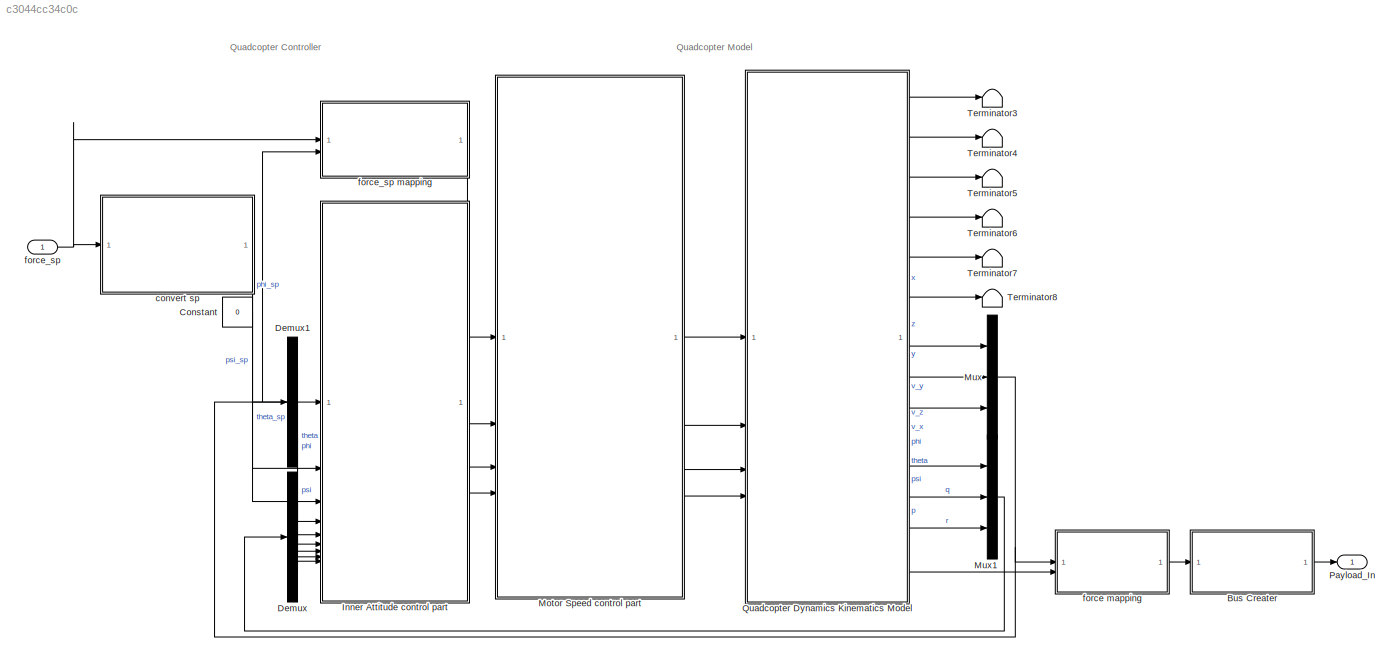
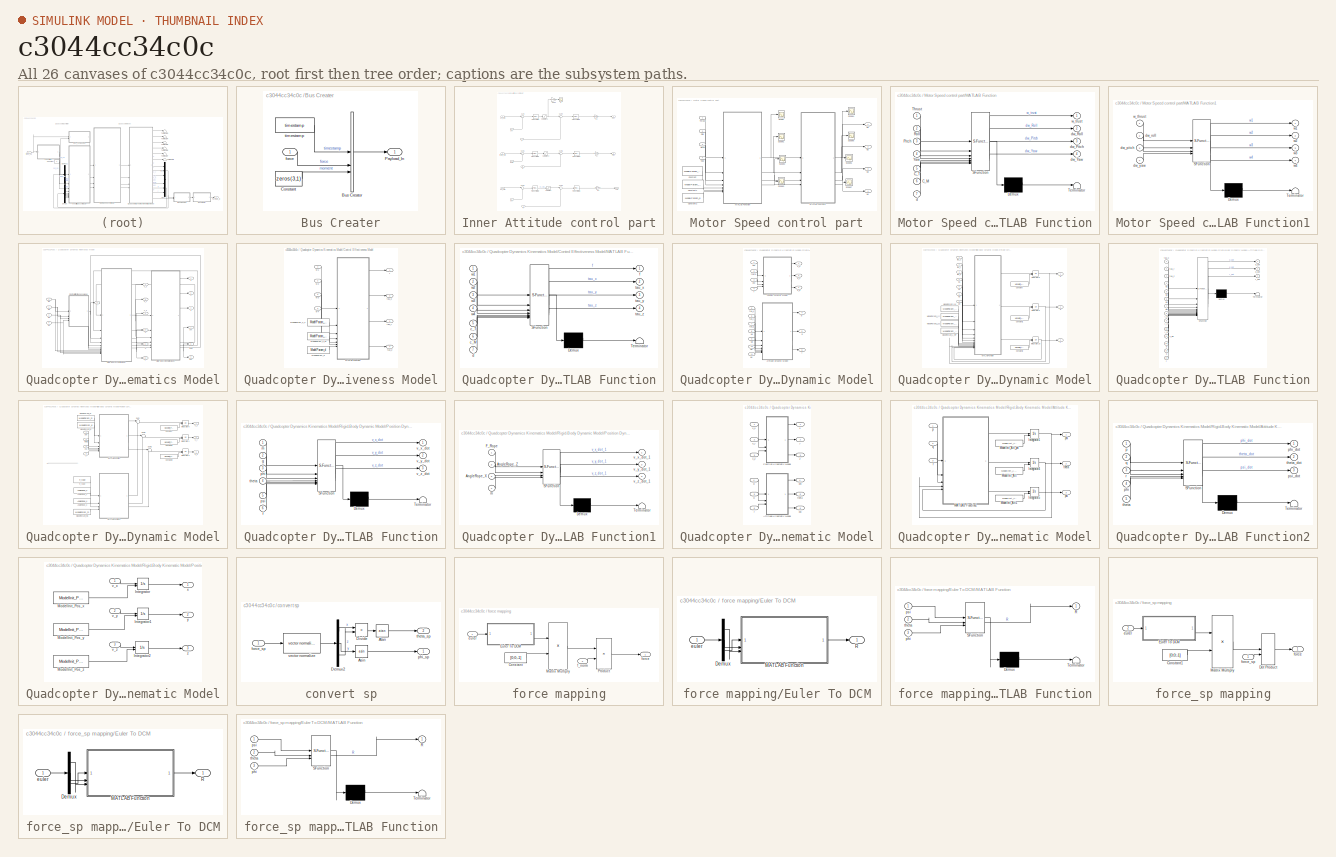
[diagram: thumbnail index - all 26 canvases of the model, root first then tree order]
MODEL slx_c3044cc34c0c
KIND model
BLOCK [SubSystem] Bus Creater
BLOCK [BusCreator] Bus Creater/Bus Creator
  DisplayOption = bar
  InheritFromInputs = on
  Inputs = 3
  OutDataTypeStr = Bus: Payload_In_Bus
BLOCK [Constant] Bus Creater/Constant
  Value = zeros(3,1)
BLOCK [Outport] Bus Creater/Payload_In
BLOCK [Inport] Bus Creater/force
BLOCK [Reference] Bus Creater/timestamp  REF=mqlib/timestamp  (lib defined in slx_e55b6aeabbfa)
  SourceBlock = mqlib/timestamp
BLOCK [Constant] Constant
  Value = 0
BLOCK [Demux] Demux
  Outputs = 3
BLOCK [Demux] Demux1
  Outputs = 3
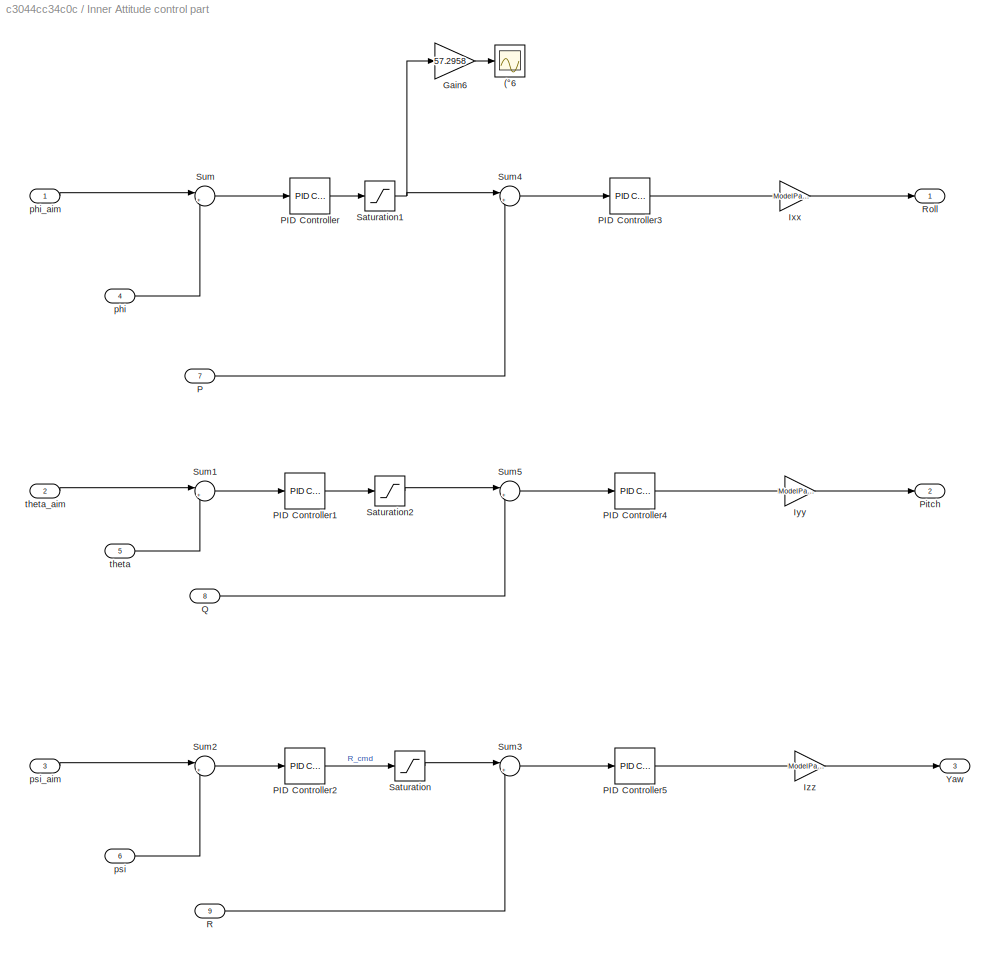
BLOCK [SubSystem] Inner Attitude control part
BLOCK [Scope] Inner Attitude control part/(°6
  Floating = off
  NumInputPorts = 1
  ScopeSpecificationString = Simulink.scopes.TimeScopeBlockCfg('CurrentConfiguration', extmgr.ConfigurationSet(extmgr.Configuration('Core','General UI',true),extmgr.Configuration('Core','Source UI',true),extmgr.Configuration('Sources','WiredSimulink',true,'DataLoggingVariableName','ScopeData8'),extmgr.Configuration('Visuals','Time Domain',true,'SerializedDisplays',{struct('MinYLimReal','-1.00000','MaxYLimReal','1.00000','YLab...<+1453ch>
BLOCK [Gain] Inner Attitude control part/Gain6
  Gain = 57.2958
BLOCK [Gain] Inner Attitude control part/Ixx
  Gain = ModelParam_I_xx
BLOCK [Gain] Inner Attitude control part/Iyy
  Gain = ModelParam_I_yy
BLOCK [Gain] Inner Attitude control part/Izz
  Gain = ModelParam_I_zz
BLOCK [Inport] Inner Attitude control part/P
  Port = 7
BLOCK [Reference] Inner Attitude control part/PID Controller  REF=slpidlib/PID Controller
  SourceBlock = slpidlib/PID Controller
  SourceType = PID 1dof
BLOCK [Reference] Inner Attitude control part/PID Controller1  REF=slpidlib/PID Controller
  SourceBlock = slpidlib/PID Controller
  SourceType = PID 1dof
BLOCK [Reference] Inner Attitude control part/PID Controller2  REF=slpidlib/PID Controller
  SourceBlock = slpidlib/PID Controller
  SourceType = PID 1dof
BLOCK [Reference] Inner Attitude control part/PID Controller3  REF=slpidlib/PID Controller
  SourceBlock = slpidlib/PID Controller
  SourceType = PID 1dof
BLOCK [Reference] Inner Attitude control part/PID Controller4  REF=slpidlib/PID Controller
  SourceBlock = slpidlib/PID Controller
  SourceType = PID 1dof
BLOCK [Reference] Inner Attitude control part/PID Controller5  REF=slpidlib/PID Controller
  SourceBlock = slpidlib/PID Controller
  SourceType = PID 1dof
BLOCK [Outport] Inner Attitude control part/Pitch
  Port = 2
BLOCK [Inport] Inner Attitude control part/Q
  Port = 8
BLOCK [Inport] Inner Attitude control part/R
  Port = 9
BLOCK [Outport] Inner Attitude control part/Roll
BLOCK [Saturate] Inner Attitude control part/Saturation
  LowerLimit = -deg2rad(90)
  UpperLimit = deg2rad(90)
BLOCK [Saturate] Inner Attitude control part/Saturation1
  LowerLimit = -deg2rad(180)
  UpperLimit = deg2rad(180)
BLOCK [Saturate] Inner Attitude control part/Saturation2
  LowerLimit = -deg2rad(180)
  UpperLimit = deg2rad(180)
BLOCK [Sum] Inner Attitude control part/Sum
  Inputs = |+-
BLOCK [Sum] Inner Attitude control part/Sum1
  Inputs = |+-
BLOCK [Sum] Inner Attitude control part/Sum2
  Inputs = |+-
BLOCK [Sum] Inner Attitude control part/Sum3
  Inputs = |+-
BLOCK [Sum] Inner Attitude control part/Sum4
  Inputs = |+-
  NameLocation = top
BLOCK [Sum] Inner Attitude control part/Sum5
  Inputs = |+-
BLOCK [Outport] Inner Attitude control part/Yaw
  Port = 3
BLOCK [Inport] Inner Attitude control part/phi
  Port = 4
BLOCK [Inport] Inner Attitude control part/phi_aim
BLOCK [Inport] Inner Attitude control part/psi
  Port = 6
BLOCK [Inport] Inner Attitude control part/psi_aim
  Port = 3
BLOCK [Inport] Inner Attitude control part/theta
  Port = 5
BLOCK [Inport] Inner Attitude control part/theta_aim
  Port = 2
BLOCK [SubSystem] Motor Speed control part
BLOCK [Constant] Motor Speed control part/Constant
  Value = ModelParam_c_T
BLOCK [Constant] Motor Speed control part/Constant1
  Value = ModelParam_c_M
BLOCK [Constant] Motor Speed control part/Constant2
  Value = ModelParam_d
BLOCK [SubSystem] Motor Speed control part/MATLAB Function
  ErrorFcn = Stateflow.Translate.translate
  PermitHierarchicalResolution = ExplicitOnly
  SFBlockType = MATLAB Function
  TreatAsAtomicUnit = on
BLOCK [Demux] Motor Speed control part/MATLAB Function/ Demux 
  Outputs = 1
BLOCK [S-Function] Motor Speed control part/MATLAB Function/ SFunction 
  EnableBusSupport = on
  FunctionName = sf_sfun
  PortCounts = [7 5]
  SFcnIsStateOwnerBlock = off
  SFunctionDeploymentMode = off
  Tag = Stateflow S-Function 7
BLOCK [Terminator] Motor Speed control part/MATLAB Function/ Terminator 
BLOCK [Inport] Motor Speed control part/MATLAB Function/C_M
  Port = 6
BLOCK [Inport] Motor Speed control part/MATLAB Function/C_T
  Port = 5
BLOCK [Inport] Motor Speed control part/MATLAB Function/Pitch
  Port = 3
BLOCK [Inport] Motor Speed control part/MATLAB Function/Roll
  Port = 2
BLOCK [Inport] Motor Speed control part/MATLAB Function/Thrust
BLOCK [Inport] Motor Speed control part/MATLAB Function/Yaw
  Port = 4
BLOCK [Inport] Motor Speed control part/MATLAB Function/d
  Port = 7
BLOCK [Outport] Motor Speed control part/MATLAB Function/dw_Pitch
  Port = 3
BLOCK [Outport] Motor Speed control part/MATLAB Function/dw_Roll
  Port = 2
BLOCK [Outport] Motor Speed control part/MATLAB Function/dw_Yaw
  Port = 4
BLOCK [Outport] Motor Speed control part/MATLAB Function/w_trust
BLOCK [SubSystem] Motor Speed control part/MATLAB Function1
  ErrorFcn = Stateflow.Translate.translate
  PermitHierarchicalResolution = ExplicitOnly
  SFBlockType = MATLAB Function
  TreatAsAtomicUnit = on
BLOCK [Demux] Motor Speed control part/MATLAB Function1/ Demux 
  Outputs = 1
BLOCK [S-Function] Motor Speed control part/MATLAB Function1/ SFunction 
  EnableBusSupport = on
  FunctionName = sf_sfun
  PortCounts = [4 5]
  SFcnIsStateOwnerBlock = off
  SFunctionDeploymentMode = off
  Tag = Stateflow S-Function 8
BLOCK [Terminator] Motor Speed control part/MATLAB Function1/ Terminator 
BLOCK [Inport] Motor Speed control part/MATLAB Function1/dw_pitch
  Port = 3
BLOCK [Inport] Motor Speed control part/MATLAB Function1/dw_roll
  Port = 2
BLOCK [Inport] Motor Speed control part/MATLAB Function1/dw_yaw
  Port = 4
BLOCK [Outport] Motor Speed control part/MATLAB Function1/w1
BLOCK [Outport] Motor Speed control part/MATLAB Function1/w2
  Port = 2
BLOCK [Outport] Motor Speed control part/MATLAB Function1/w3
  Port = 3
BLOCK [Outport] Motor Speed control part/MATLAB Function1/w4
  Port = 4
BLOCK [Inport] Motor Speed control part/MATLAB Function1/w_thrust
BLOCK [Inport] Motor Speed control part/Pitch
  Port = 3
BLOCK [Inport] Motor Speed control part/Roll
  Port = 2
BLOCK [Scope] Motor Speed control part/Scope
  Floating = off
  NumInputPorts = 1
  ScopeSpecificationString = Simulink.scopes.TimeScopeBlockCfg('CurrentConfiguration', extmgr.ConfigurationSet(extmgr.Configuration('Core','General UI',true),extmgr.Configuration('Core','Source UI',true),extmgr.Configuration('Sources','WiredSimulink',true,'DataLoggingVariableName','ScopeData10'),extmgr.Configuration('Visuals','Time Domain',true,'SerializedDisplays',{struct('MinYLimReal','-340082201242.79626','MaxYLimReal','30...<+1606ch>
BLOCK [Scope] Motor Speed control part/Scope1
  Floating = off
  NumInputPorts = 1
  ScopeSpecificationString = Simulink.scopes.TimeScopeBlockCfg('CurrentConfiguration', extmgr.ConfigurationSet(extmgr.Configuration('Core','General UI',true),extmgr.Configuration('Core','Source UI',true),extmgr.Configuration('Sources','WiredSimulink',true,'DataLoggingVariableName','ScopeData6'),extmgr.Configuration('Visuals','Time Domain',true,'SerializedDisplays',{struct('MinYLimReal','-1.00000','MaxYLimReal','1.00000','YLab...<+1515ch>
BLOCK [Scope] Motor Speed control part/Scope2
  Floating = off
  NumInputPorts = 1
  ScopeSpecificationString = Simulink.scopes.TimeScopeBlockCfg('CurrentConfiguration', extmgr.ConfigurationSet(extmgr.Configuration('Core','General UI',true),extmgr.Configuration('Core','Source UI',true),extmgr.Configuration('Sources','WiredSimulink',true,'DataLoggingVariableName','ScopeData7'),extmgr.Configuration('Visuals','Time Domain',true,'SerializedDisplays',{struct('MinYLimReal','-1.00000','MaxYLimReal','1.00000','YLab...<+1516ch>
BLOCK [Scope] Motor Speed control part/Scope3
  Floating = off
  NumInputPorts = 1
  ScopeSpecificationString = Simulink.scopes.TimeScopeBlockCfg('CurrentConfiguration', extmgr.ConfigurationSet(extmgr.Configuration('Core','General UI',true),extmgr.Configuration('Core','Source UI',true),extmgr.Configuration('Sources','WiredSimulink',true,'DataLoggingVariableName','ScopeData8'),extmgr.Configuration('Visuals','Time Domain',true,'SerializedDisplays',{struct('MinYLimReal','-1.00000','MaxYLimReal','1.00000','YLab...<+1514ch>
BLOCK [Scope] Motor Speed control part/Scope4
  Floating = off
  NumInputPorts = 1
  ScopeSpecificationString = Simulink.scopes.TimeScopeBlockCfg('CurrentConfiguration', extmgr.ConfigurationSet(extmgr.Configuration('Core','General UI',true),extmgr.Configuration('Core','Source UI',true),extmgr.Configuration('Sources','WiredSimulink',true,'DataLoggingVariableName','ScopeData9'),extmgr.Configuration('Visuals','Time Domain',true,'SerializedDisplays',{struct('MinYLimReal','-340082201242.79626','MaxYLimReal','306...<+1601ch>
BLOCK [Scope] Motor Speed control part/Scope5
  Floating = off
  NumInputPorts = 1
  ScopeSpecificationString = Simulink.scopes.TimeScopeBlockCfg('CurrentConfiguration', extmgr.ConfigurationSet(extmgr.Configuration('Core','General UI',true),extmgr.Configuration('Core','Source UI',true),extmgr.Configuration('Sources','WiredSimulink',true,'DataLoggingVariableName','ScopeData10'),extmgr.Configuration('Visuals','Time Domain',true,'SerializedDisplays',{struct('MinYLimReal','-340082201242.79626','MaxYLimReal','30...<+1602ch>
BLOCK [Scope] Motor Speed control part/Scope6
  Floating = off
  NumInputPorts = 1
  ScopeSpecificationString = Simulink.scopes.TimeScopeBlockCfg('CurrentConfiguration', extmgr.ConfigurationSet(extmgr.Configuration('Core','General UI',true),extmgr.Configuration('Core','Source UI',true),extmgr.Configuration('Sources','WiredSimulink',true,'DataLoggingVariableName','ScopeData11'),extmgr.Configuration('Visuals','Time Domain',true,'SerializedDisplays',{struct('MinYLimReal','-340082201242.79626','MaxYLimReal','30...<+1606ch>
BLOCK [Scope] Motor Speed control part/Scope7
  Floating = off
  NumInputPorts = 1
  ScopeSpecificationString = Simulink.scopes.TimeScopeBlockCfg('CurrentConfiguration', extmgr.ConfigurationSet(extmgr.Configuration('Core','General UI',true),extmgr.Configuration('Core','Source UI',true),extmgr.Configuration('Sources','WiredSimulink',true,'DataLoggingVariableName','ScopeData12'),extmgr.Configuration('Visuals','Time Domain',true,'SerializedDisplays',{struct('MinYLimReal','-340082201242.79626','MaxYLimReal','30...<+1606ch>
BLOCK [Inport] Motor Speed control part/Thrust
BLOCK [Inport] Motor Speed control part/Yaw
  Port = 4
BLOCK [Outport] Motor Speed control part/w1
BLOCK [Outport] Motor Speed control part/w2
  Port = 2
BLOCK [Outport] Motor Speed control part/w3
  Port = 3
BLOCK [Outport] Motor Speed control part/w4
  Port = 4
BLOCK [Mux] Mux
  DisplayOption = bar
  Inputs = 3
BLOCK [Mux] Mux1
  DisplayOption = bar
  Inputs = 3
BLOCK [Outport] Payload_In
  OutDataTypeStr = Bus: Payload_In_Bus
BLOCK [SubSystem] Quadcopter Dynamics Kinematics Model
BLOCK [SubSystem] Quadcopter Dynamics Kinematics Model/Control Effectiveness Model
BLOCK [SubSystem] Quadcopter Dynamics Kinematics Model/Control Effectiveness Model/MATLAB Function
  ErrorFcn = Stateflow.Translate.translate
  PermitHierarchicalResolution = ExplicitOnly
  SFBlockType = MATLAB Function
  TreatAsAtomicUnit = on
BLOCK [Demux] Quadcopter Dynamics Kinematics Model/Control Effectiveness Model/MATLAB Function/ Demux 
  Outputs = 1
BLOCK [S-Function] Quadcopter Dynamics Kinematics Model/Control Effectiveness Model/MATLAB Function/ SFunction 
  EnableBusSupport = on
  FunctionName = sf_sfun
  PortCounts = [7 5]
  SFcnIsStateOwnerBlock = off
  SFunctionDeploymentMode = off
  Tag = Stateflow S-Function 2
BLOCK [Terminator] Quadcopter Dynamics Kinematics Model/Control Effectiveness Model/MATLAB Function/ Terminator 
BLOCK [Inport] Quadcopter Dynamics Kinematics Model/Control Effectiveness Model/MATLAB Function/c_M
  Port = 6
BLOCK [Inport] Quadcopter Dynamics Kinematics Model/Control Effectiveness Model/MATLAB Function/c_T
  Port = 5
BLOCK [Inport] Quadcopter Dynamics Kinematics Model/Control Effectiveness Model/MATLAB Function/d
  Port = 7
BLOCK [Outport] Quadcopter Dynamics Kinematics Model/Control Effectiveness Model/MATLAB Function/f
  VectorParamsAs1DForOutWhenUnconnected = off
BLOCK [Outport] Quadcopter Dynamics Kinematics Model/Control Effectiveness Model/MATLAB Function/tau_x
  Port = 2
  VectorParamsAs1DForOutWhenUnconnected = off
BLOCK [Outport] Quadcopter Dynamics Kinematics Model/Control Effectiveness Model/MATLAB Function/tau_y
  Port = 3
  VectorParamsAs1DForOutWhenUnconnected = off
BLOCK [Outport] Quadcopter Dynamics Kinematics Model/Control Effectiveness Model/MATLAB Function/tau_z
  Port = 4
  VectorParamsAs1DForOutWhenUnconnected = off
BLOCK [Inport] Quadcopter Dynamics Kinematics Model/Control Effectiveness Model/MATLAB Function/w1
BLOCK [Inport] Quadcopter Dynamics Kinematics Model/Control Effectiveness Model/MATLAB Function/w2
  Port = 2
BLOCK [Inport] Quadcopter Dynamics Kinematics Model/Control Effectiveness Model/MATLAB Function/w3
  Port = 3
BLOCK [Inport] Quadcopter Dynamics Kinematics Model/Control Effectiveness Model/MATLAB Function/w4
  Port = 4
BLOCK [Constant] Quadcopter Dynamics Kinematics Model/Control Effectiveness Model/ModelParam_c_M
  Value = ModelParam_c_M
BLOCK [Constant] Quadcopter Dynamics Kinematics Model/Control Effectiveness Model/ModelParam_c_T
  Value = ModelParam_c_T
BLOCK [Constant] Quadcopter Dynamics Kinematics Model/Control Effectiveness Model/ModelParam_d
  Value = ModelParam_d
BLOCK [Outport] Quadcopter Dynamics Kinematics Model/Control Effectiveness Model/f
  VectorParamsAs1DForOutWhenUnconnected = off
BLOCK [Outport] Quadcopter Dynamics Kinematics Model/Control Effectiveness Model/tau_x
  Port = 2
  VectorParamsAs1DForOutWhenUnconnected = off
BLOCK [Outport] Quadcopter Dynamics Kinematics Model/Control Effectiveness Model/tau_y
  Port = 3
  VectorParamsAs1DForOutWhenUnconnected = off
BLOCK [Outport] Quadcopter Dynamics Kinematics Model/Control Effectiveness Model/tau_z
  Port = 4
  VectorParamsAs1DForOutWhenUnconnected = off
BLOCK [Inport] Quadcopter Dynamics Kinematics Model/Control Effectiveness Model/w1
BLOCK [Inport] Quadcopter Dynamics Kinematics Model/Control Effectiveness Model/w2
  Port = 2
BLOCK [Inport] Quadcopter Dynamics Kinematics Model/Control Effectiveness Model/w3
  Port = 3
BLOCK [Inport] Quadcopter Dynamics Kinematics Model/Control Effectiveness Model/w4
  Port = 4
BLOCK [SubSystem] Quadcopter Dynamics Kinematics Model/Rigid-Body Dynamic Model
BLOCK [SubSystem] Quadcopter Dynamics Kinematics Model/Rigid-Body Dynamic Model/Attitude Dynamic Model
BLOCK [Constant] Quadcopter Dynamics Kinematics Model/Rigid-Body Dynamic Model/Attitude Dynamic Model/Constant
  Value = ModelInit_Att_p
BLOCK [Constant] Quadcopter Dynamics Kinematics Model/Rigid-Body Dynamic Model/Attitude Dynamic Model/Constant1
  Value = ModelInit_Att_q
BLOCK [Constant] Quadcopter Dynamics Kinematics Model/Rigid-Body Dynamic Model/Attitude Dynamic Model/Constant2
  Value = ModelInit_Att_r
BLOCK [Integrator] Quadcopter Dynamics Kinematics Model/Rigid-Body Dynamic Model/Attitude Dynamic Model/Integrator10
  InitialConditionSource = external
BLOCK [Integrator] Quadcopter Dynamics Kinematics Model/Rigid-Body Dynamic Model/Attitude Dynamic Model/Integrator8
  InitialConditionSource = external
BLOCK [Integrator] Quadcopter Dynamics Kinematics Model/Rigid-Body Dynamic Model/Attitude Dynamic Model/Integrator9
  InitialConditionSource = external
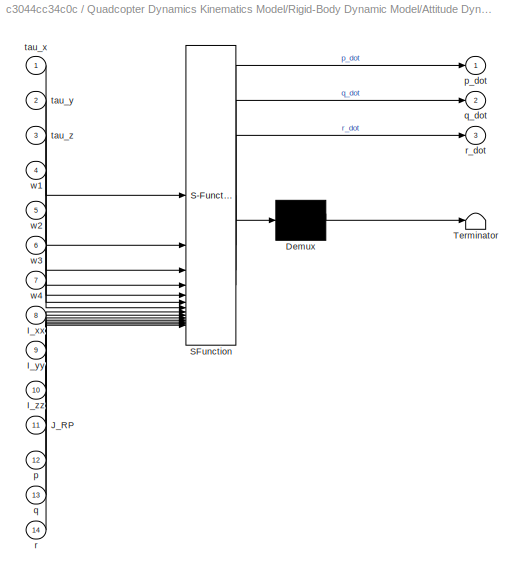
BLOCK [SubSystem] Quadcopter Dynamics Kinematics Model/Rigid-Body Dynamic Model/Attitude Dynamic Model/MATLAB Function
  ErrorFcn = Stateflow.Translate.translate
  PermitHierarchicalResolution = ExplicitOnly
  SFBlockType = MATLAB Function
  TreatAsAtomicUnit = on
BLOCK [Demux] Quadcopter Dynamics Kinematics Model/Rigid-Body Dynamic Model/Attitude Dynamic Model/MATLAB Function/ Demux 
  Outputs = 1
BLOCK [S-Function] Quadcopter Dynamics Kinematics Model/Rigid-Body Dynamic Model/Attitude Dynamic Model/MATLAB Function/ SFunction 
  EnableBusSupport = on
  FunctionName = sf_sfun
  PortCounts = [14 4]
  SFcnIsStateOwnerBlock = off
  SFunctionDeploymentMode = off
  Tag = Stateflow S-Function 5
BLOCK [Terminator] Quadcopter Dynamics Kinematics Model/Rigid-Body Dynamic Model/Attitude Dynamic Model/MATLAB Function/ Terminator 
BLOCK [Inport] Quadcopter Dynamics Kinematics Model/Rigid-Body Dynamic Model/Attitude Dynamic Model/MATLAB Function/I_xx
  Port = 8
BLOCK [Inport] Quadcopter Dynamics Kinematics Model/Rigid-Body Dynamic Model/Attitude Dynamic Model/MATLAB Function/I_yy
  Port = 9
BLOCK [Inport] Quadcopter Dynamics Kinematics Model/Rigid-Body Dynamic Model/Attitude Dynamic Model/MATLAB Function/I_zz
  Port = 10
BLOCK [Inport] Quadcopter Dynamics Kinematics Model/Rigid-Body Dynamic Model/Attitude Dynamic Model/MATLAB Function/J_RP
  Port = 11
BLOCK [Inport] Quadcopter Dynamics Kinematics Model/Rigid-Body Dynamic Model/Attitude Dynamic Model/MATLAB Function/p
  Port = 12
BLOCK [Outport] Quadcopter Dynamics Kinematics Model/Rigid-Body Dynamic Model/Attitude Dynamic Model/MATLAB Function/p_dot
  VectorParamsAs1DForOutWhenUnconnected = off
BLOCK [Inport] Quadcopter Dynamics Kinematics Model/Rigid-Body Dynamic Model/Attitude Dynamic Model/MATLAB Function/q
  Port = 13
BLOCK [Outport] Quadcopter Dynamics Kinematics Model/Rigid-Body Dynamic Model/Attitude Dynamic Model/MATLAB Function/q_dot
  Port = 2
  VectorParamsAs1DForOutWhenUnconnected = off
BLOCK [Inport] Quadcopter Dynamics Kinematics Model/Rigid-Body Dynamic Model/Attitude Dynamic Model/MATLAB Function/r
  Port = 14
BLOCK [Outport] Quadcopter Dynamics Kinematics Model/Rigid-Body Dynamic Model/Attitude Dynamic Model/MATLAB Function/r_dot
  Port = 3
  VectorParamsAs1DForOutWhenUnconnected = off
BLOCK [Inport] Quadcopter Dynamics Kinematics Model/Rigid-Body Dynamic Model/Attitude Dynamic Model/MATLAB Function/tau_x
BLOCK [Inport] Quadcopter Dynamics Kinematics Model/Rigid-Body Dynamic Model/Attitude Dynamic Model/MATLAB Function/tau_y
  Port = 2
BLOCK [Inport] Quadcopter Dynamics Kinematics Model/Rigid-Body Dynamic Model/Attitude Dynamic Model/MATLAB Function/tau_z
  Port = 3
BLOCK [Inport] Quadcopter Dynamics Kinematics Model/Rigid-Body Dynamic Model/Attitude Dynamic Model/MATLAB Function/w1
  Port = 4
BLOCK [Inport] Quadcopter Dynamics Kinematics Model/Rigid-Body Dynamic Model/Attitude Dynamic Model/MATLAB Function/w2
  Port = 5
BLOCK [Inport] Quadcopter Dynamics Kinematics Model/Rigid-Body Dynamic Model/Attitude Dynamic Model/MATLAB Function/w3
  Port = 6
BLOCK [Inport] Quadcopter Dynamics Kinematics Model/Rigid-Body Dynamic Model/Attitude Dynamic Model/MATLAB Function/w4
  Port = 7
BLOCK [Constant] Quadcopter Dynamics Kinematics Model/Rigid-Body Dynamic Model/Attitude Dynamic Model/ModelParam_I_xx
  Value = ModelParam_I_xx
BLOCK [Constant] Quadcopter Dynamics Kinematics Model/Rigid-Body Dynamic Model/Attitude Dynamic Model/ModelParam_I_yy
  Value = ModelParam_I_yy
BLOCK [Constant] Quadcopter Dynamics Kinematics Model/Rigid-Body Dynamic Model/Attitude Dynamic Model/ModelParam_I_zz
  Value = ModelParam_I_zz
BLOCK [Constant] Quadcopter Dynamics Kinematics Model/Rigid-Body Dynamic Model/Attitude Dynamic Model/ModelParam_J_RP
  Value = ModelParam_J_RP
BLOCK [Outport] Quadcopter Dynamics Kinematics Model/Rigid-Body Dynamic Model/Attitude Dynamic Model/p
  VectorParamsAs1DForOutWhenUnconnected = off
BLOCK [Outport] Quadcopter Dynamics Kinematics Model/Rigid-Body Dynamic Model/Attitude Dynamic Model/q
  Port = 2
  VectorParamsAs1DForOutWhenUnconnected = off
BLOCK [Outport] Quadcopter Dynamics Kinematics Model/Rigid-Body Dynamic Model/Attitude Dynamic Model/r
  Port = 3
  VectorParamsAs1DForOutWhenUnconnected = off
BLOCK [Inport] Quadcopter Dynamics Kinematics Model/Rigid-Body Dynamic Model/Attitude Dynamic Model/tau_x
BLOCK [Inport] Quadcopter Dynamics Kinematics Model/Rigid-Body Dynamic Model/Attitude Dynamic Model/tau_y
  Port = 2
BLOCK [Inport] Quadcopter Dynamics Kinematics Model/Rigid-Body Dynamic Model/Attitude Dynamic Model/tau_z
  Port = 3
BLOCK [Inport] Quadcopter Dynamics Kinematics Model/Rigid-Body Dynamic Model/Attitude Dynamic Model/w1
  Port = 4
BLOCK [Inport] Quadcopter Dynamics Kinematics Model/Rigid-Body Dynamic Model/Attitude Dynamic Model/w2
  Port = 5
BLOCK [Inport] Quadcopter Dynamics Kinematics Model/Rigid-Body Dynamic Model/Attitude Dynamic Model/w3
  Port = 6
BLOCK [Inport] Quadcopter Dynamics Kinematics Model/Rigid-Body Dynamic Model/Attitude Dynamic Model/w4
  Port = 7
BLOCK [SubSystem] Quadcopter Dynamics Kinematics Model/Rigid-Body Dynamic Model/Position Dynamic Model
BLOCK [Constant] Quadcopter Dynamics Kinematics Model/Rigid-Body Dynamic Model/Position Dynamic Model/AngleRope_x
  Value = AngleRope_x
BLOCK [Constant] Quadcopter Dynamics Kinematics Model/Rigid-Body Dynamic Model/Position Dynamic Model/AngleRope_z
  Value = AngleRope_z
BLOCK [Constant] Quadcopter Dynamics Kinematics Model/Rigid-Body Dynamic Model/Position Dynamic Model/Constant
  Value = ModelInit_Pos_Vx
BLOCK [Constant] Quadcopter Dynamics Kinematics Model/Rigid-Body Dynamic Model/Position Dynamic Model/Constant1
  Value = ModelInit_Pos_Vy
BLOCK [Constant] Quadcopter Dynamics Kinematics Model/Rigid-Body Dynamic Model/Position Dynamic Model/Constant2
  Value = ModelInit_Pos_Vz
BLOCK [Constant] Quadcopter Dynamics Kinematics Model/Rigid-Body Dynamic Model/Position Dynamic Model/F_rope
  Value = F_rope
BLOCK [Integrator] Quadcopter Dynamics Kinematics Model/Rigid-Body Dynamic Model/Position Dynamic Model/Integrator1
  InitialConditionSource = external
BLOCK [Integrator] Quadcopter Dynamics Kinematics Model/Rigid-Body Dynamic Model/Position Dynamic Model/Integrator3
  InitialConditionSource = external
BLOCK [Integrator] Quadcopter Dynamics Kinematics Model/Rigid-Body Dynamic Model/Position Dynamic Model/Integrator6
  InitialConditionSource = external
BLOCK [SubSystem] Quadcopter Dynamics Kinematics Model/Rigid-Body Dynamic Model/Position Dynamic Model/MATLAB Function
  ErrorFcn = Stateflow.Translate.translate
  PermitHierarchicalResolution = ExplicitOnly
  SFBlockType = MATLAB Function
  TreatAsAtomicUnit = on
BLOCK [Demux] Quadcopter Dynamics Kinematics Model/Rigid-Body Dynamic Model/Position Dynamic Model/MATLAB Function/ Demux 
  Outputs = 1
BLOCK [S-Function] Quadcopter Dynamics Kinematics Model/Rigid-Body Dynamic Model/Position Dynamic Model/MATLAB Function/ SFunction 
  EnableBusSupport = on
  FunctionName = sf_sfun
  PortCounts = [6 4]
  SFcnIsStateOwnerBlock = off
  SFunctionDeploymentMode = off
  Tag = Stateflow S-Function 4
BLOCK [Terminator] Quadcopter Dynamics Kinematics Model/Rigid-Body Dynamic Model/Position Dynamic Model/MATLAB Function/ Terminator 
BLOCK [Inport] Quadcopter Dynamics Kinematics Model/Rigid-Body Dynamic Model/Position Dynamic Model/MATLAB Function/f
  Port = 6
BLOCK [Inport] Quadcopter Dynamics Kinematics Model/Rigid-Body Dynamic Model/Position Dynamic Model/MATLAB Function/g
  Port = 2
BLOCK [Inport] Quadcopter Dynamics Kinematics Model/Rigid-Body Dynamic Model/Position Dynamic Model/MATLAB Function/m
BLOCK [Inport] Quadcopter Dynamics Kinematics Model/Rigid-Body Dynamic Model/Position Dynamic Model/MATLAB Function/phi
  Port = 3
BLOCK [Inport] Quadcopter Dynamics Kinematics Model/Rigid-Body Dynamic Model/Position Dynamic Model/MATLAB Function/psi
  Port = 5
BLOCK [Inport] Quadcopter Dynamics Kinematics Model/Rigid-Body Dynamic Model/Position Dynamic Model/MATLAB Function/theta
  Port = 4
BLOCK [Outport] Quadcopter Dynamics Kinematics Model/Rigid-Body Dynamic Model/Position Dynamic Model/MATLAB Function/v_x_dot
  VectorParamsAs1DForOutWhenUnconnected = off
BLOCK [Outport] Quadcopter Dynamics Kinematics Model/Rigid-Body Dynamic Model/Position Dynamic Model/MATLAB Function/v_y_dot
  Port = 2
  VectorParamsAs1DForOutWhenUnconnected = off
BLOCK [Outport] Quadcopter Dynamics Kinematics Model/Rigid-Body Dynamic Model/Position Dynamic Model/MATLAB Function/v_z_dot
  Port = 3
  VectorParamsAs1DForOutWhenUnconnected = off
BLOCK [SubSystem] Quadcopter Dynamics Kinematics Model/Rigid-Body Dynamic Model/Position Dynamic Model/MATLAB Function1
  ErrorFcn = Stateflow.Translate.translate
  PermitHierarchicalResolution = ExplicitOnly
  SFBlockType = MATLAB Function
  TreatAsAtomicUnit = on
BLOCK [Demux] Quadcopter Dynamics Kinematics Model/Rigid-Body Dynamic Model/Position Dynamic Model/MATLAB Function1/ Demux 
  Outputs = 1
BLOCK [S-Function] Quadcopter Dynamics Kinematics Model/Rigid-Body Dynamic Model/Position Dynamic Model/MATLAB Function1/ SFunction 
  EnableBusSupport = on
  FunctionName = sf_sfun
  PortCounts = [4 4]
  SFcnIsStateOwnerBlock = off
  SFunctionDeploymentMode = off
  Tag = Stateflow S-Function 3
BLOCK [Terminator] Quadcopter Dynamics Kinematics Model/Rigid-Body Dynamic Model/Position Dynamic Model/MATLAB Function1/ Terminator 
BLOCK [Inport] Quadcopter Dynamics Kinematics Model/Rigid-Body Dynamic Model/Position Dynamic Model/MATLAB Function1/AngleRope_X
  Port = 3
BLOCK [Inport] Quadcopter Dynamics Kinematics Model/Rigid-Body Dynamic Model/Position Dynamic Model/MATLAB Function1/AngleRope_Z
  Port = 2
BLOCK [Inport] Quadcopter Dynamics Kinematics Model/Rigid-Body Dynamic Model/Position Dynamic Model/MATLAB Function1/F_Rope
BLOCK [Inport] Quadcopter Dynamics Kinematics Model/Rigid-Body Dynamic Model/Position Dynamic Model/MATLAB Function1/m
  Port = 4
BLOCK [Outport] Quadcopter Dynamics Kinematics Model/Rigid-Body Dynamic Model/Position Dynamic Model/MATLAB Function1/v_x_dot_1
BLOCK [Outport] Quadcopter Dynamics Kinematics Model/Rigid-Body Dynamic Model/Position Dynamic Model/MATLAB Function1/v_y_dot_1
  Port = 2
BLOCK [Outport] Quadcopter Dynamics Kinematics Model/Rigid-Body Dynamic Model/Position Dynamic Model/MATLAB Function1/v_z_dot_1
  Port = 3
BLOCK [Constant] Quadcopter Dynamics Kinematics Model/Rigid-Body Dynamic Model/Position Dynamic Model/ModelParam_g
  Value = ModelParam_g
BLOCK [Constant] Quadcopter Dynamics Kinematics Model/Rigid-Body Dynamic Model/Position Dynamic Model/ModelParam_m
  Value = ModelParam_m
BLOCK [Constant] Quadcopter Dynamics Kinematics Model/Rigid-Body Dynamic Model/Position Dynamic Model/ModelParam_m1
  Value = ModelParam_m
BLOCK [Sum] Quadcopter Dynamics Kinematics Model/Rigid-Body Dynamic Model/Position Dynamic Model/Sum
  Inputs = |++
BLOCK [Sum] Quadcopter Dynamics Kinematics Model/Rigid-Body Dynamic Model/Position Dynamic Model/Sum1
  Inputs = |++
BLOCK [Sum] Quadcopter Dynamics Kinematics Model/Rigid-Body Dynamic Model/Position Dynamic Model/Sum2
  Inputs = |++
BLOCK [Inport] Quadcopter Dynamics Kinematics Model/Rigid-Body Dynamic Model/Position Dynamic Model/f
  Port = 4
BLOCK [Inport] Quadcopter Dynamics Kinematics Model/Rigid-Body Dynamic Model/Position Dynamic Model/phi
BLOCK [Inport] Quadcopter Dynamics Kinematics Model/Rigid-Body Dynamic Model/Position Dynamic Model/psi
  Port = 3
BLOCK [Inport] Quadcopter Dynamics Kinematics Model/Rigid-Body Dynamic Model/Position Dynamic Model/theta
  Port = 2
BLOCK [Outport] Quadcopter Dynamics Kinematics Model/Rigid-Body Dynamic Model/Position Dynamic Model/v_x
  VectorParamsAs1DForOutWhenUnconnected = off
BLOCK [Outport] Quadcopter Dynamics Kinematics Model/Rigid-Body Dynamic Model/Position Dynamic Model/v_y
  Port = 2
  VectorParamsAs1DForOutWhenUnconnected = off
BLOCK [Outport] Quadcopter Dynamics Kinematics Model/Rigid-Body Dynamic Model/Position Dynamic Model/v_z
  Port = 3
  VectorParamsAs1DForOutWhenUnconnected = off
BLOCK [Inport] Quadcopter Dynamics Kinematics Model/Rigid-Body Dynamic Model/f
  Port = 4
BLOCK [Outport] Quadcopter Dynamics Kinematics Model/Rigid-Body Dynamic Model/p
  Port = 4
  VectorParamsAs1DForOutWhenUnconnected = off
BLOCK [Inport] Quadcopter Dynamics Kinematics Model/Rigid-Body Dynamic Model/phi
BLOCK [Inport] Quadcopter Dynamics Kinematics Model/Rigid-Body Dynamic Model/psi
  Port = 3
BLOCK [Outport] Quadcopter Dynamics Kinematics Model/Rigid-Body Dynamic Model/q
  Port = 5
  VectorParamsAs1DForOutWhenUnconnected = off
BLOCK [Outport] Quadcopter Dynamics Kinematics Model/Rigid-Body Dynamic Model/r
  Port = 6
  VectorParamsAs1DForOutWhenUnconnected = off
BLOCK [Inport] Quadcopter Dynamics Kinematics Model/Rigid-Body Dynamic Model/tau_x
  Port = 5
BLOCK [Inport] Quadcopter Dynamics Kinematics Model/Rigid-Body Dynamic Model/tau_y
  Port = 6
BLOCK [Inport] Quadcopter Dynamics Kinematics Model/Rigid-Body Dynamic Model/tau_z
  Port = 7
BLOCK [Inport] Quadcopter Dynamics Kinematics Model/Rigid-Body Dynamic Model/theta
  Port = 2
BLOCK [Outport] Quadcopter Dynamics Kinematics Model/Rigid-Body Dynamic Model/v_x
  VectorParamsAs1DForOutWhenUnconnected = off
BLOCK [Outport] Quadcopter Dynamics Kinematics Model/Rigid-Body Dynamic Model/v_y
  Port = 2
  VectorParamsAs1DForOutWhenUnconnected = off
BLOCK [Outport] Quadcopter Dynamics Kinematics Model/Rigid-Body Dynamic Model/v_z
  Port = 3
  VectorParamsAs1DForOutWhenUnconnected = off
BLOCK [Inport] Quadcopter Dynamics Kinematics Model/Rigid-Body Dynamic Model/w1
  Port = 8
BLOCK [Inport] Quadcopter Dynamics Kinematics Model/Rigid-Body Dynamic Model/w2
  Port = 9
BLOCK [Inport] Quadcopter Dynamics Kinematics Model/Rigid-Body Dynamic Model/w3
  Port = 10
BLOCK [Inport] Quadcopter Dynamics Kinematics Model/Rigid-Body Dynamic Model/w4
  Port = 11
BLOCK [SubSystem] Quadcopter Dynamics Kinematics Model/Rigid-Body Kinematic Model
BLOCK [SubSystem] Quadcopter Dynamics Kinematics Model/Rigid-Body Kinematic Model/Attitude Kinematic Model
BLOCK [Integrator] Quadcopter Dynamics Kinematics Model/Rigid-Body Kinematic Model/Attitude Kinematic Model/Integrator1
  InitialConditionSource = external
BLOCK [Integrator] Quadcopter Dynamics Kinematics Model/Rigid-Body Kinematic Model/Attitude Kinematic Model/Integrator4
  InitialConditionSource = external
BLOCK [Integrator] Quadcopter Dynamics Kinematics Model/Rigid-Body Kinematic Model/Attitude Kinematic Model/Integrator5
  InitialConditionSource = external
BLOCK [SubSystem] Quadcopter Dynamics Kinematics Model/Rigid-Body Kinematic Model/Attitude Kinematic Model/MATLAB Function2
  ErrorFcn = Stateflow.Translate.translate
  PermitHierarchicalResolution = ExplicitOnly
  SFBlockType = MATLAB Function
  TreatAsAtomicUnit = on
BLOCK [Demux] Quadcopter Dynamics Kinematics Model/Rigid-Body Kinematic Model/Attitude Kinematic Model/MATLAB Function2/ Demux 
  Outputs = 1
BLOCK [S-Function] Quadcopter Dynamics Kinematics Model/Rigid-Body Kinematic Model/Attitude Kinematic Model/MATLAB Function2/ SFunction 
  EnableBusSupport = on
  FunctionName = sf_sfun
  PortCounts = [5 4]
  SFcnIsStateOwnerBlock = off
  SFunctionDeploymentMode = off
  Tag = Stateflow S-Function 1
BLOCK [Terminator] Quadcopter Dynamics Kinematics Model/Rigid-Body Kinematic Model/Attitude Kinematic Model/MATLAB Function2/ Terminator 
BLOCK [Inport] Quadcopter Dynamics Kinematics Model/Rigid-Body Kinematic Model/Attitude Kinematic Model/MATLAB Function2/p
BLOCK [Inport] Quadcopter Dynamics Kinematics Model/Rigid-Body Kinematic Model/Attitude Kinematic Model/MATLAB Function2/phi
  Port = 4
BLOCK [Outport] Quadcopter Dynamics Kinematics Model/Rigid-Body Kinematic Model/Attitude Kinematic Model/MATLAB Function2/phi_dot
  VectorParamsAs1DForOutWhenUnconnected = off
BLOCK [Outport] Quadcopter Dynamics Kinematics Model/Rigid-Body Kinematic Model/Attitude Kinematic Model/MATLAB Function2/psi_dot
  Port = 3
  VectorParamsAs1DForOutWhenUnconnected = off
BLOCK [Inport] Quadcopter Dynamics Kinematics Model/Rigid-Body Kinematic Model/Attitude Kinematic Model/MATLAB Function2/q
  Port = 2
BLOCK [Inport] Quadcopter Dynamics Kinematics Model/Rigid-Body Kinematic Model/Attitude Kinematic Model/MATLAB Function2/r
  Port = 3
BLOCK [Inport] Quadcopter Dynamics Kinematics Model/Rigid-Body Kinematic Model/Attitude Kinematic Model/MATLAB Function2/theta
  Port = 5
BLOCK [Outport] Quadcopter Dynamics Kinematics Model/Rigid-Body Kinematic Model/Attitude Kinematic Model/MATLAB Function2/theta_dot
  Port = 2
  VectorParamsAs1DForOutWhenUnconnected = off
BLOCK [Constant] Quadcopter Dynamics Kinematics Model/Rigid-Body Kinematic Model/Attitude Kinematic Model/ModelInit_Att
  Value = ModelInit_Att_theta
BLOCK [Constant] Quadcopter Dynamics Kinematics Model/Rigid-Body Kinematic Model/Attitude Kinematic Model/ModelInit_Att1
  Value = ModelInit_Att_psi
BLOCK [Constant] Quadcopter Dynamics Kinematics Model/Rigid-Body Kinematic Model/Attitude Kinematic Model/ModelInit_Att_phi
  Value = ModelInit_Att_phi
BLOCK [Inport] Quadcopter Dynamics Kinematics Model/Rigid-Body Kinematic Model/Attitude Kinematic Model/p
BLOCK [Outport] Quadcopter Dynamics Kinematics Model/Rigid-Body Kinematic Model/Attitude Kinematic Model/phi
  VectorParamsAs1DForOutWhenUnconnected = off
BLOCK [Outport] Quadcopter Dynamics Kinematics Model/Rigid-Body Kinematic Model/Attitude Kinematic Model/psi
  Port = 3
  VectorParamsAs1DForOutWhenUnconnected = off
BLOCK [Inport] Quadcopter Dynamics Kinematics Model/Rigid-Body Kinematic Model/Attitude Kinematic Model/q
  Port = 2
BLOCK [Inport] Quadcopter Dynamics Kinematics Model/Rigid-Body Kinematic Model/Attitude Kinematic Model/r
  Port = 3
BLOCK [Outport] Quadcopter Dynamics Kinematics Model/Rigid-Body Kinematic Model/Attitude Kinematic Model/theta
  Port = 2
  VectorParamsAs1DForOutWhenUnconnected = off
BLOCK [SubSystem] Quadcopter Dynamics Kinematics Model/Rigid-Body Kinematic Model/Position Kinematic Model
BLOCK [Integrator] Quadcopter Dynamics Kinematics Model/Rigid-Body Kinematic Model/Position Kinematic Model/Integrator
  InitialConditionSource = external
BLOCK [Integrator] Quadcopter Dynamics Kinematics Model/Rigid-Body Kinematic Model/Position Kinematic Model/Integrator1
  InitialConditionSource = external
BLOCK [Integrator] Quadcopter Dynamics Kinematics Model/Rigid-Body Kinematic Model/Position Kinematic Model/Integrator2
  InitialConditionSource = external
BLOCK [Constant] Quadcopter Dynamics Kinematics Model/Rigid-Body Kinematic Model/Position Kinematic Model/ModelInit_Pos_x
  Value = ModelInit_Pos_x
BLOCK [Constant] Quadcopter Dynamics Kinematics Model/Rigid-Body Kinematic Model/Position Kinematic Model/ModelInit_Pos_y
  Value = ModelInit_Pos_y
BLOCK [Constant] Quadcopter Dynamics Kinematics Model/Rigid-Body Kinematic Model/Position Kinematic Model/ModelInit_Pos_z
  Value = ModelInit_Pos_z
BLOCK [Inport] Quadcopter Dynamics Kinematics Model/Rigid-Body Kinematic Model/Position Kinematic Model/v_x
BLOCK [Inport] Quadcopter Dynamics Kinematics Model/Rigid-Body Kinematic Model/Position Kinematic Model/v_y
  Port = 2
BLOCK [Inport] Quadcopter Dynamics Kinematics Model/Rigid-Body Kinematic Model/Position Kinematic Model/v_z
  Port = 3
BLOCK [Outport] Quadcopter Dynamics Kinematics Model/Rigid-Body Kinematic Model/Position Kinematic Model/x
  VectorParamsAs1DForOutWhenUnconnected = off
BLOCK [Outport] Quadcopter Dynamics Kinematics Model/Rigid-Body Kinematic Model/Position Kinematic Model/y
  Port = 2
  VectorParamsAs1DForOutWhenUnconnected = off
BLOCK [Outport] Quadcopter Dynamics Kinematics Model/Rigid-Body Kinematic Model/Position Kinematic Model/z
  Port = 3
  VectorParamsAs1DForOutWhenUnconnected = off
BLOCK [Inport] Quadcopter Dynamics Kinematics Model/Rigid-Body Kinematic Model/p
  Port = 4
BLOCK [Outport] Quadcopter Dynamics Kinematics Model/Rigid-Body Kinematic Model/phi
  Port = 4
  VectorParamsAs1DForOutWhenUnconnected = off
BLOCK [Outport] Quadcopter Dynamics Kinematics Model/Rigid-Body Kinematic Model/psi
  Port = 6
  VectorParamsAs1DForOutWhenUnconnected = off
BLOCK [Inport] Quadcopter Dynamics Kinematics Model/Rigid-Body Kinematic Model/q
  Port = 5
BLOCK [Inport] Quadcopter Dynamics Kinematics Model/Rigid-Body Kinematic Model/r
  Port = 6
BLOCK [Outport] Quadcopter Dynamics Kinematics Model/Rigid-Body Kinematic Model/theta
  Port = 5
  VectorParamsAs1DForOutWhenUnconnected = off
BLOCK [Inport] Quadcopter Dynamics Kinematics Model/Rigid-Body Kinematic Model/v_x
BLOCK [Inport] Quadcopter Dynamics Kinematics Model/Rigid-Body Kinematic Model/v_y
  Port = 2
BLOCK [Inport] Quadcopter Dynamics Kinematics Model/Rigid-Body Kinematic Model/v_z
  Port = 3
BLOCK [Outport] Quadcopter Dynamics Kinematics Model/Rigid-Body Kinematic Model/x
  VectorParamsAs1DForOutWhenUnconnected = off
BLOCK [Outport] Quadcopter Dynamics Kinematics Model/Rigid-Body Kinematic Model/y
  Port = 2
  VectorParamsAs1DForOutWhenUnconnected = off
BLOCK [Outport] Quadcopter Dynamics Kinematics Model/Rigid-Body Kinematic Model/z
  Port = 3
  VectorParamsAs1DForOutWhenUnconnected = off
BLOCK [Outport] Quadcopter Dynamics Kinematics Model/f
  Port = 13
BLOCK [Outport] Quadcopter Dynamics Kinematics Model/p
  Port = 10
  VectorParamsAs1DForOutWhenUnconnected = off
BLOCK [Outport] Quadcopter Dynamics Kinematics Model/phi
  Port = 7
  VectorParamsAs1DForOutWhenUnconnected = off
BLOCK [Outport] Quadcopter Dynamics Kinematics Model/psi
  Port = 9
  VectorParamsAs1DForOutWhenUnconnected = off
BLOCK [Outport] Quadcopter Dynamics Kinematics Model/q
  Port = 11
  VectorParamsAs1DForOutWhenUnconnected = off
BLOCK [Outport] Quadcopter Dynamics Kinematics Model/r
  Port = 12
  VectorParamsAs1DForOutWhenUnconnected = off
BLOCK [Outport] Quadcopter Dynamics Kinematics Model/theta
  Port = 8
  VectorParamsAs1DForOutWhenUnconnected = off
BLOCK [Outport] Quadcopter Dynamics Kinematics Model/v_x
  Port = 4
  VectorParamsAs1DForOutWhenUnconnected = off
BLOCK [Outport] Quadcopter Dynamics Kinematics Model/v_y
  Port = 5
  VectorParamsAs1DForOutWhenUnconnected = off
BLOCK [Outport] Quadcopter Dynamics Kinematics Model/v_z
  Port = 6
  VectorParamsAs1DForOutWhenUnconnected = off
BLOCK [Inport] Quadcopter Dynamics Kinematics Model/w1
BLOCK [Inport] Quadcopter Dynamics Kinematics Model/w2
  Port = 2
BLOCK [Inport] Quadcopter Dynamics Kinematics Model/w3
  Port = 3
BLOCK [Inport] Quadcopter Dynamics Kinematics Model/w4
  Port = 4
BLOCK [Outport] Quadcopter Dynamics Kinematics Model/x
  VectorParamsAs1DForOutWhenUnconnected = off
BLOCK [Outport] Quadcopter Dynamics Kinematics Model/y
  Port = 2
  VectorParamsAs1DForOutWhenUnconnected = off
BLOCK [Outport] Quadcopter Dynamics Kinematics Model/z
  Port = 3
  VectorParamsAs1DForOutWhenUnconnected = off
BLOCK [Terminator] Terminator3
BLOCK [Terminator] Terminator4
BLOCK [Terminator] Terminator5
BLOCK [Terminator] Terminator6
BLOCK [Terminator] Terminator7
BLOCK [Terminator] Terminator8
BLOCK [SubSystem] convert sp
BLOCK [Trigonometry] convert sp/Asin
  Operator = asin
BLOCK [Trigonometry] convert sp/Atan
  Operator = atan
BLOCK [Demux] convert sp/Demux2
  Outputs = 3
BLOCK [Product] convert sp/Divide
  Inputs = */
BLOCK [Inport] convert sp/force_sp
BLOCK [Outport] convert sp/phi_sp
BLOCK [Outport] convert sp/theta_sp
  Port = 2
BLOCK [Reference] convert sp/vector normalize  REF=mqlib/vector normalize  (lib defined in slx_e55b6aeabbfa)
  SourceBlock = mqlib/vector normalize
BLOCK [SubSystem] force mapping
BLOCK [Constant] force mapping/Constant
  Value = [0;0;-1]
BLOCK [SubSystem] force mapping/Euler To DCM
BLOCK [Demux] force mapping/Euler To DCM/Demux
  Outputs = 3
BLOCK [SubSystem] force mapping/Euler To DCM/MATLAB Function
  ErrorFcn = Stateflow.Translate.translate
  PermitHierarchicalResolution = ExplicitOnly
  SFBlockType = MATLAB Function
  TreatAsAtomicUnit = on
BLOCK [Demux] force mapping/Euler To DCM/MATLAB Function/ Demux 
  Outputs = 1
BLOCK [S-Function] force mapping/Euler To DCM/MATLAB Function/ SFunction 
  EnableBusSupport = on
  FunctionName = sf_sfun
  PortCounts = [3 2]
  SFcnIsStateOwnerBlock = off
  SFunctionDeploymentMode = off
  Tag = Stateflow S-Function 6
BLOCK [Terminator] force mapping/Euler To DCM/MATLAB Function/ Terminator 
BLOCK [Outport] force mapping/Euler To DCM/MATLAB Function/R
BLOCK [Inport] force mapping/Euler To DCM/MATLAB Function/phi
  Port = 3
BLOCK [Inport] force mapping/Euler To DCM/MATLAB Function/psi
BLOCK [Inport] force mapping/Euler To DCM/MATLAB Function/theta
  Port = 2
BLOCK [Outport] force mapping/Euler To DCM/R
BLOCK [Inport] force mapping/Euler To DCM/euler
BLOCK [Product] force mapping/Matrix Multiply
  Multiplication = Matrix(*)
BLOCK [Product] force mapping/Product
BLOCK [Inport] force mapping/euler
BLOCK [Inport] force mapping/f_norm
  Port = 2
BLOCK [Outport] force mapping/force
BLOCK [Inport] force_sp
BLOCK [SubSystem] force_sp mapping
BLOCK [Constant] force_sp mapping/Constant1
  Value = [0;0;-1]
BLOCK [DotProduct] force_sp mapping/Dot Product
  OutDataTypeStr = Inherit: Inherit via internal rule
BLOCK [SubSystem] force_sp mapping/Euler To DCM
BLOCK [Demux] force_sp mapping/Euler To DCM/Demux
  Outputs = 3
BLOCK [SubSystem] force_sp mapping/Euler To DCM/MATLAB Function
  ErrorFcn = Stateflow.Translate.translate
  PermitHierarchicalResolution = ExplicitOnly
  SFBlockType = MATLAB Function
  TreatAsAtomicUnit = on
BLOCK [Demux] force_sp mapping/Euler To DCM/MATLAB Function/ Demux 
  Outputs = 1
BLOCK [S-Function] force_sp mapping/Euler To DCM/MATLAB Function/ SFunction 
  EnableBusSupport = on
  FunctionName = sf_sfun
  PortCounts = [3 2]
  SFcnIsStateOwnerBlock = off
  SFunctionDeploymentMode = off
  Tag = Stateflow S-Function 9
BLOCK [Terminator] force_sp mapping/Euler To DCM/MATLAB Function/ Terminator 
BLOCK [Outport] force_sp mapping/Euler To DCM/MATLAB Function/R
BLOCK [Inport] force_sp mapping/Euler To DCM/MATLAB Function/phi
  Port = 3
BLOCK [Inport] force_sp mapping/Euler To DCM/MATLAB Function/psi
BLOCK [Inport] force_sp mapping/Euler To DCM/MATLAB Function/theta
  Port = 2
BLOCK [Outport] force_sp mapping/Euler To DCM/R
BLOCK [Inport] force_sp mapping/Euler To DCM/euler
BLOCK [Product] force_sp mapping/Matrix Multiply
  Multiplication = Matrix(*)
BLOCK [Inport] force_sp mapping/euler
  Port = 2
BLOCK [Outport] force_sp mapping/force
BLOCK [Inport] force_sp mapping/force_sp
ANNOTATION (root): Quadcopter Controller
ANNOTATION (root): Quadcopter Model
ANNOTATION Quadcopter Dynamics Kinematics Model/Rigid-Body Dynamic Model/Position Dynamic Model: %四旋翼在加入绳系载荷后的的位置动力学微分方程组加速度项的补充
LINE Bus Creater/Bus Creator:1 -> Bus Creater/Payload_In:1
LINE Bus Creater/Constant:1 -> Bus Creater/Bus Creator:3
LINE Bus Creater/force:1 -> Bus Creater/Bus Creator:2
LINE Bus Creater/timestamp:1 -> Bus Creater/Bus Creator:1
LINE Bus Creater:1 -> Payload_In:1
LINE Constant:1 -> Inner Attitude control part:3
LINE Demux1:1 -> Inner Attitude control part:4
LINE Demux1:2 -> Inner Attitude control part:5
LINE Demux1:3 -> Inner Attitude control part:6
LINE Demux:1 -> Inner Attitude control part:7
LINE Demux:2 -> Inner Attitude control part:8
LINE Demux:3 -> Inner Attitude control part:9
LINE Inner Attitude control part/Gain6:1 -> Inner Attitude control part/(°6:1
LINE Inner Attitude control part/Ixx:1 -> Inner Attitude control part/Roll:1
LINE Inner Attitude control part/Iyy:1 -> Inner Attitude control part/Pitch:1
LINE Inner Attitude control part/Izz:1 -> Inner Attitude control part/Yaw:1
LINE Inner Attitude control part/P:1 -> Inner Attitude control part/Sum4:2
LINE Inner Attitude control part/PID Controller1:1 -> Inner Attitude control part/Saturation2:1
LINE Inner Attitude control part/PID Controller2:1 -> Inner Attitude control part/Saturation:1
LINE Inner Attitude control part/PID Controller3:1 -> Inner Attitude control part/Ixx:1
LINE Inner Attitude control part/PID Controller4:1 -> Inner Attitude control part/Iyy:1
LINE Inner Attitude control part/PID Controller5:1 -> Inner Attitude control part/Izz:1
LINE Inner Attitude control part/PID Controller:1 -> Inner Attitude control part/Saturation1:1
LINE Inner Attitude control part/Q:1 -> Inner Attitude control part/Sum5:2
LINE Inner Attitude control part/R:1 -> Inner Attitude control part/Sum3:2
NET Inner Attitude control part/Saturation1:1 -> Inner Attitude control part/Gain6:1, Inner Attitude control part/Sum4:1
LINE Inner Attitude control part/Saturation2:1 -> Inner Attitude control part/Sum5:1
LINE Inner Attitude control part/Saturation:1 -> Inner Attitude control part/Sum3:1
LINE Inner Attitude control part/Sum1:1 -> Inner Attitude control part/PID Controller1:1
LINE Inner Attitude control part/Sum2:1 -> Inner Attitude control part/PID Controller2:1
LINE Inner Attitude control part/Sum3:1 -> Inner Attitude control part/PID Controller5:1
LINE Inner Attitude control part/Sum4:1 -> Inner Attitude control part/PID Controller3:1
LINE Inner Attitude control part/Sum5:1 -> Inner Attitude control part/PID Controller4:1
LINE Inner Attitude control part/Sum:1 -> Inner Attitude control part/PID Controller:1
LINE Inner Attitude control part/phi:1 -> Inner Attitude control part/Sum:2
LINE Inner Attitude control part/phi_aim:1 -> Inner Attitude control part/Sum:1
LINE Inner Attitude control part/psi:1 -> Inner Attitude control part/Sum2:2
LINE Inner Attitude control part/psi_aim:1 -> Inner Attitude control part/Sum2:1
LINE Inner Attitude control part/theta:1 -> Inner Attitude control part/Sum1:2
LINE Inner Attitude control part/theta_aim:1 -> Inner Attitude control part/Sum1:1
LINE Inner Attitude control part:1 -> Motor Speed control part:2
LINE Inner Attitude control part:2 -> Motor Speed control part:3
LINE Inner Attitude control part:3 -> Motor Speed control part:4
LINE Motor Speed control part/Constant1:1 -> Motor Speed control part/MATLAB Function:6
LINE Motor Speed control part/Constant2:1 -> Motor Speed control part/MATLAB Function:7
LINE Motor Speed control part/Constant:1 -> Motor Speed control part/MATLAB Function:5
NET Motor Speed control part/MATLAB Function1:1 -> Motor Speed control part/Scope4:1, Motor Speed control part/w1:1
NET Motor Speed control part/MATLAB Function1:2 -> Motor Speed control part/Scope5:1, Motor Speed control part/w2:1
NET Motor Speed control part/MATLAB Function1:3 -> Motor Speed control part/Scope6:1, Motor Speed control part/w3:1
NET Motor Speed control part/MATLAB Function1:4 -> Motor Speed control part/Scope7:1, Motor Speed control part/w4:1
NET Motor Speed control part/MATLAB Function:1 -> Motor Speed control part/MATLAB Function1:1, Motor Speed control part/Scope:1
NET Motor Speed control part/MATLAB Function:2 -> Motor Speed control part/MATLAB Function1:2, Motor Speed control part/Scope1:1
NET Motor Speed control part/MATLAB Function:3 -> Motor Speed control part/MATLAB Function1:3, Motor Speed control part/Scope2:1
NET Motor Speed control part/MATLAB Function:4 -> Motor Speed control part/MATLAB Function1:4, Motor Speed control part/Scope3:1
LINE Motor Speed control part/Pitch:1 -> Motor Speed control part/MATLAB Function:3
LINE Motor Speed control part/Roll:1 -> Motor Speed control part/MATLAB Function:2
LINE Motor Speed control part/Thrust:1 -> Motor Speed control part/MATLAB Function:1
LINE Motor Speed control part/Yaw:1 -> Motor Speed control part/MATLAB Function:4
LINE Motor Speed control part:1 -> Quadcopter Dynamics Kinematics Model:1
LINE Motor Speed control part:2 -> Quadcopter Dynamics Kinematics Model:2
LINE Motor Speed control part:3 -> Quadcopter Dynamics Kinematics Model:3
LINE Motor Speed control part:4 -> Quadcopter Dynamics Kinematics Model:4
LINE Mux1:1 -> Demux:1
NET Mux:1 -> Demux1:1, force mapping:1, force_sp mapping:2
LINE Quadcopter Dynamics Kinematics Model/Control Effectiveness Model/MATLAB Function:1 -> Quadcopter Dynamics Kinematics Model/Control Effectiveness Model/f:1
LINE Quadcopter Dynamics Kinematics Model/Control Effectiveness Model/MATLAB Function:2 -> Quadcopter Dynamics Kinematics Model/Control Effectiveness Model/tau_x:1
LINE Quadcopter Dynamics Kinematics Model/Control Effectiveness Model/MATLAB Function:3 -> Quadcopter Dynamics Kinematics Model/Control Effectiveness Model/tau_y:1
LINE Quadcopter Dynamics Kinematics Model/Control Effectiveness Model/MATLAB Function:4 -> Quadcopter Dynamics Kinematics Model/Control Effectiveness Model/tau_z:1
LINE Quadcopter Dynamics Kinematics Model/Control Effectiveness Model/ModelParam_c_M:1 -> Quadcopter Dynamics Kinematics Model/Control Effectiveness Model/MATLAB Function:6
LINE Quadcopter Dynamics Kinematics Model/Control Effectiveness Model/ModelParam_c_T:1 -> Quadcopter Dynamics Kinematics Model/Control Effectiveness Model/MATLAB Function:5
LINE Quadcopter Dynamics Kinematics Model/Control Effectiveness Model/ModelParam_d:1 -> Quadcopter Dynamics Kinematics Model/Control Effectiveness Model/MATLAB Function:7
LINE Quadcopter Dynamics Kinematics Model/Control Effectiveness Model/w1:1 -> Quadcopter Dynamics Kinematics Model/Control Effectiveness Model/MATLAB Function:1
LINE Quadcopter Dynamics Kinematics Model/Control Effectiveness Model/w2:1 -> Quadcopter Dynamics Kinematics Model/Control Effectiveness Model/MATLAB Function:2
LINE Quadcopter Dynamics Kinematics Model/Control Effectiveness Model/w3:1 -> Quadcopter Dynamics Kinematics Model/Control Effectiveness Model/MATLAB Function:3
LINE Quadcopter Dynamics Kinematics Model/Control Effectiveness Model/w4:1 -> Quadcopter Dynamics Kinematics Model/Control Effectiveness Model/MATLAB Function:4
NET Quadcopter Dynamics Kinematics Model/Control Effectiveness Model:1 -> Quadcopter Dynamics Kinematics Model/Rigid-Body Dynamic Model:4, Quadcopter Dynamics Kinematics Model/f:1
LINE Quadcopter Dynamics Kinematics Model/Control Effectiveness Model:2 -> Quadcopter Dynamics Kinematics Model/Rigid-Body Dynamic Model:5
LINE Quadcopter Dynamics Kinematics Model/Control Effectiveness Model:3 -> Quadcopter Dynamics Kinematics Model/Rigid-Body Dynamic Model:6
LINE Quadcopter Dynamics Kinematics Model/Control Effectiveness Model:4 -> Quadcopter Dynamics Kinematics Model/Rigid-Body Dynamic Model:7
LINE Quadcopter Dynamics Kinematics Model/Rigid-Body Dynamic Model/Attitude Dynamic Model/Constant1:1 -> Quadcopter Dynamics Kinematics Model/Rigid-Body Dynamic Model/Attitude Dynamic Model/Integrator9:2
LINE Quadcopter Dynamics Kinematics Model/Rigid-Body Dynamic Model/Attitude Dynamic Model/Constant2:1 -> Quadcopter Dynamics Kinematics Model/Rigid-Body Dynamic Model/Attitude Dynamic Model/Integrator10:2
LINE Quadcopter Dynamics Kinematics Model/Rigid-Body Dynamic Model/Attitude Dynamic Model/Constant:1 -> Quadcopter Dynamics Kinematics Model/Rigid-Body Dynamic Model/Attitude Dynamic Model/Integrator8:2
NET Quadcopter Dynamics Kinematics Model/Rigid-Body Dynamic Model/Attitude Dynamic Model/Integrator10:1 -> Quadcopter Dynamics Kinematics Model/Rigid-Body Dynamic Model/Attitude Dynamic Model/MATLAB Function:14, Quadcopter Dynamics Kinematics Model/Rigid-Body Dynamic Model/Attitude Dynamic Model/r:1
NET Quadcopter Dynamics Kinematics Model/Rigid-Body Dynamic Model/Attitude Dynamic Model/Integrator8:1 -> Quadcopter Dynamics Kinematics Model/Rigid-Body Dynamic Model/Attitude Dynamic Model/MATLAB Function:12, Quadcopter Dynamics Kinematics Model/Rigid-Body Dynamic Model/Attitude Dynamic Model/p:1
NET Quadcopter Dynamics Kinematics Model/Rigid-Body Dynamic Model/Attitude Dynamic Model/Integrator9:1 -> Quadcopter Dynamics Kinematics Model/Rigid-Body Dynamic Model/Attitude Dynamic Model/MATLAB Function:13, Quadcopter Dynamics Kinematics Model/Rigid-Body Dynamic Model/Attitude Dynamic Model/q:1
LINE Quadcopter Dynamics Kinematics Model/Rigid-Body Dynamic Model/Attitude Dynamic Model/MATLAB Function:1 -> Quadcopter Dynamics Kinematics Model/Rigid-Body Dynamic Model/Attitude Dynamic Model/Integrator8:1
LINE Quadcopter Dynamics Kinematics Model/Rigid-Body Dynamic Model/Attitude Dynamic Model/MATLAB Function:2 -> Quadcopter Dynamics Kinematics Model/Rigid-Body Dynamic Model/Attitude Dynamic Model/Integrator9:1
LINE Quadcopter Dynamics Kinematics Model/Rigid-Body Dynamic Model/Attitude Dynamic Model/MATLAB Function:3 -> Quadcopter Dynamics Kinematics Model/Rigid-Body Dynamic Model/Attitude Dynamic Model/Integrator10:1
LINE Quadcopter Dynamics Kinematics Model/Rigid-Body Dynamic Model/Attitude Dynamic Model/ModelParam_I_xx:1 -> Quadcopter Dynamics Kinematics Model/Rigid-Body Dynamic Model/Attitude Dynamic Model/MATLAB Function:8
LINE Quadcopter Dynamics Kinematics Model/Rigid-Body Dynamic Model/Attitude Dynamic Model/ModelParam_I_yy:1 -> Quadcopter Dynamics Kinematics Model/Rigid-Body Dynamic Model/Attitude Dynamic Model/MATLAB Function:9
LINE Quadcopter Dynamics Kinematics Model/Rigid-Body Dynamic Model/Attitude Dynamic Model/ModelParam_I_zz:1 -> Quadcopter Dynamics Kinematics Model/Rigid-Body Dynamic Model/Attitude Dynamic Model/MATLAB Function:10
LINE Quadcopter Dynamics Kinematics Model/Rigid-Body Dynamic Model/Attitude Dynamic Model/ModelParam_J_RP:1 -> Quadcopter Dynamics Kinematics Model/Rigid-Body Dynamic Model/Attitude Dynamic Model/MATLAB Function:11
LINE Quadcopter Dynamics Kinematics Model/Rigid-Body Dynamic Model/Attitude Dynamic Model/tau_x:1 -> Quadcopter Dynamics Kinematics Model/Rigid-Body Dynamic Model/Attitude Dynamic Model/MATLAB Function:1
LINE Quadcopter Dynamics Kinematics Model/Rigid-Body Dynamic Model/Attitude Dynamic Model/tau_y:1 -> Quadcopter Dynamics Kinematics Model/Rigid-Body Dynamic Model/Attitude Dynamic Model/MATLAB Function:2
LINE Quadcopter Dynamics Kinematics Model/Rigid-Body Dynamic Model/Attitude Dynamic Model/tau_z:1 -> Quadcopter Dynamics Kinematics Model/Rigid-Body Dynamic Model/Attitude Dynamic Model/MATLAB Function:3
LINE Quadcopter Dynamics Kinematics Model/Rigid-Body Dynamic Model/Attitude Dynamic Model/w1:1 -> Quadcopter Dynamics Kinematics Model/Rigid-Body Dynamic Model/Attitude Dynamic Model/MATLAB Function:4
LINE Quadcopter Dynamics Kinematics Model/Rigid-Body Dynamic Model/Attitude Dynamic Model/w2:1 -> Quadcopter Dynamics Kinematics Model/Rigid-Body Dynamic Model/Attitude Dynamic Model/MATLAB Function:5
LINE Quadcopter Dynamics Kinematics Model/Rigid-Body Dynamic Model/Attitude Dynamic Model/w3:1 -> Quadcopter Dynamics Kinematics Model/Rigid-Body Dynamic Model/Attitude Dynamic Model/MATLAB Function:6
LINE Quadcopter Dynamics Kinematics Model/Rigid-Body Dynamic Model/Attitude Dynamic Model/w4:1 -> Quadcopter Dynamics Kinematics Model/Rigid-Body Dynamic Model/Attitude Dynamic Model/MATLAB Function:7
LINE Quadcopter Dynamics Kinematics Model/Rigid-Body Dynamic Model/Attitude Dynamic Model:1 -> Quadcopter Dynamics Kinematics Model/Rigid-Body Dynamic Model/p:1
LINE Quadcopter Dynamics Kinematics Model/Rigid-Body Dynamic Model/Attitude Dynamic Model:2 -> Quadcopter Dynamics Kinematics Model/Rigid-Body Dynamic Model/q:1
LINE Quadcopter Dynamics Kinematics Model/Rigid-Body Dynamic Model/Attitude Dynamic Model:3 -> Quadcopter Dynamics Kinematics Model/Rigid-Body Dynamic Model/r:1
LINE Quadcopter Dynamics Kinematics Model/Rigid-Body Dynamic Model/Position Dynamic Model/AngleRope_x:1 -> Quadcopter Dynamics Kinematics Model/Rigid-Body Dynamic Model/Position Dynamic Model/MATLAB Function1:3
LINE Quadcopter Dynamics Kinematics Model/Rigid-Body Dynamic Model/Position Dynamic Model/AngleRope_z:1 -> Quadcopter Dynamics Kinematics Model/Rigid-Body Dynamic Model/Position Dynamic Model/MATLAB Function1:2
LINE Quadcopter Dynamics Kinematics Model/Rigid-Body Dynamic Model/Position Dynamic Model/Constant1:1 -> Quadcopter Dynamics Kinematics Model/Rigid-Body Dynamic Model/Position Dynamic Model/Integrator1:2
LINE Quadcopter Dynamics Kinematics Model/Rigid-Body Dynamic Model/Position Dynamic Model/Constant2:1 -> Quadcopter Dynamics Kinematics Model/Rigid-Body Dynamic Model/Position Dynamic Model/Integrator3:2
LINE Quadcopter Dynamics Kinematics Model/Rigid-Body Dynamic Model/Position Dynamic Model/Constant:1 -> Quadcopter Dynamics Kinematics Model/Rigid-Body Dynamic Model/Position Dynamic Model/Integrator6:2
LINE Quadcopter Dynamics Kinematics Model/Rigid-Body Dynamic Model/Position Dynamic Model/F_rope:1 -> Quadcopter Dynamics Kinematics Model/Rigid-Body Dynamic Model/Position Dynamic Model/MATLAB Function1:1
LINE Quadcopter Dynamics Kinematics Model/Rigid-Body Dynamic Model/Position Dynamic Model/Integrator1:1 -> Quadcopter Dynamics Kinematics Model/Rigid-Body Dynamic Model/Position Dynamic Model/v_y:1
LINE Quadcopter Dynamics Kinematics Model/Rigid-Body Dynamic Model/Position Dynamic Model/Integrator3:1 -> Quadcopter Dynamics Kinematics Model/Rigid-Body Dynamic Model/Position Dynamic Model/v_z:1
LINE Quadcopter Dynamics Kinematics Model/Rigid-Body Dynamic Model/Position Dynamic Model/Integrator6:1 -> Quadcopter Dynamics Kinematics Model/Rigid-Body Dynamic Model/Position Dynamic Model/v_x:1
LINE Quadcopter Dynamics Kinematics Model/Rigid-Body Dynamic Model/Position Dynamic Model/MATLAB Function1:1 -> Quadcopter Dynamics Kinematics Model/Rigid-Body Dynamic Model/Position Dynamic Model/Sum:2
LINE Quadcopter Dynamics Kinematics Model/Rigid-Body Dynamic Model/Position Dynamic Model/MATLAB Function1:2 -> Quadcopter Dynamics Kinematics Model/Rigid-Body Dynamic Model/Position Dynamic Model/Sum1:2
LINE Quadcopter Dynamics Kinematics Model/Rigid-Body Dynamic Model/Position Dynamic Model/MATLAB Function1:3 -> Quadcopter Dynamics Kinematics Model/Rigid-Body Dynamic Model/Position Dynamic Model/Sum2:2
LINE Quadcopter Dynamics Kinematics Model/Rigid-Body Dynamic Model/Position Dynamic Model/MATLAB Function:1 -> Quadcopter Dynamics Kinematics Model/Rigid-Body Dynamic Model/Position Dynamic Model/Sum:1
LINE Quadcopter Dynamics Kinematics Model/Rigid-Body Dynamic Model/Position Dynamic Model/MATLAB Function:2 -> Quadcopter Dynamics Kinematics Model/Rigid-Body Dynamic Model/Position Dynamic Model/Sum1:1
LINE Quadcopter Dynamics Kinematics Model/Rigid-Body Dynamic Model/Position Dynamic Model/MATLAB Function:3 -> Quadcopter Dynamics Kinematics Model/Rigid-Body Dynamic Model/Position Dynamic Model/Sum2:1
LINE Quadcopter Dynamics Kinematics Model/Rigid-Body Dynamic Model/Position Dynamic Model/ModelParam_g:1 -> Quadcopter Dynamics Kinematics Model/Rigid-Body Dynamic Model/Position Dynamic Model/MATLAB Function:2
LINE Quadcopter Dynamics Kinematics Model/Rigid-Body Dynamic Model/Position Dynamic Model/ModelParam_m1:1 -> Quadcopter Dynamics Kinematics Model/Rigid-Body Dynamic Model/Position Dynamic Model/MATLAB Function1:4
LINE Quadcopter Dynamics Kinematics Model/Rigid-Body Dynamic Model/Position Dynamic Model/ModelParam_m:1 -> Quadcopter Dynamics Kinematics Model/Rigid-Body Dynamic Model/Position Dynamic Model/MATLAB Function:1
LINE Quadcopter Dynamics Kinematics Model/Rigid-Body Dynamic Model/Position Dynamic Model/Sum1:1 -> Quadcopter Dynamics Kinematics Model/Rigid-Body Dynamic Model/Position Dynamic Model/Integrator1:1
LINE Quadcopter Dynamics Kinematics Model/Rigid-Body Dynamic Model/Position Dynamic Model/Sum2:1 -> Quadcopter Dynamics Kinematics Model/Rigid-Body Dynamic Model/Position Dynamic Model/Integrator3:1
LINE Quadcopter Dynamics Kinematics Model/Rigid-Body Dynamic Model/Position Dynamic Model/Sum:1 -> Quadcopter Dynamics Kinematics Model/Rigid-Body Dynamic Model/Position Dynamic Model/Integrator6:1
LINE Quadcopter Dynamics Kinematics Model/Rigid-Body Dynamic Model/Position Dynamic Model/f:1 -> Quadcopter Dynamics Kinematics Model/Rigid-Body Dynamic Model/Position Dynamic Model/MATLAB Function:6
LINE Quadcopter Dynamics Kinematics Model/Rigid-Body Dynamic Model/Position Dynamic Model/phi:1 -> Quadcopter Dynamics Kinematics Model/Rigid-Body Dynamic Model/Position Dynamic Model/MATLAB Function:3
LINE Quadcopter Dynamics Kinematics Model/Rigid-Body Dynamic Model/Position Dynamic Model/psi:1 -> Quadcopter Dynamics Kinematics Model/Rigid-Body Dynamic Model/Position Dynamic Model/MATLAB Function:5
LINE Quadcopter Dynamics Kinematics Model/Rigid-Body Dynamic Model/Position Dynamic Model/theta:1 -> Quadcopter Dynamics Kinematics Model/Rigid-Body Dynamic Model/Position Dynamic Model/MATLAB Function:4
LINE Quadcopter Dynamics Kinematics Model/Rigid-Body Dynamic Model/Position Dynamic Model:1 -> Quadcopter Dynamics Kinematics Model/Rigid-Body Dynamic Model/v_x:1
LINE Quadcopter Dynamics Kinematics Model/Rigid-Body Dynamic Model/Position Dynamic Model:2 -> Quadcopter Dynamics Kinematics Model/Rigid-Body Dynamic Model/v_y:1
LINE Quadcopter Dynamics Kinematics Model/Rigid-Body Dynamic Model/Position Dynamic Model:3 -> Quadcopter Dynamics Kinematics Model/Rigid-Body Dynamic Model/v_z:1
LINE Quadcopter Dynamics Kinematics Model/Rigid-Body Dynamic Model/f:1 -> Quadcopter Dynamics Kinematics Model/Rigid-Body Dynamic Model/Position Dynamic Model:4
LINE Quadcopter Dynamics Kinematics Model/Rigid-Body Dynamic Model/phi:1 -> Quadcopter Dynamics Kinematics Model/Rigid-Body Dynamic Model/Position Dynamic Model:1
LINE Quadcopter Dynamics Kinematics Model/Rigid-Body Dynamic Model/psi:1 -> Quadcopter Dynamics Kinematics Model/Rigid-Body Dynamic Model/Position Dynamic Model:3
LINE Quadcopter Dynamics Kinematics Model/Rigid-Body Dynamic Model/tau_x:1 -> Quadcopter Dynamics Kinematics Model/Rigid-Body Dynamic Model/Attitude Dynamic Model:1
LINE Quadcopter Dynamics Kinematics Model/Rigid-Body Dynamic Model/tau_y:1 -> Quadcopter Dynamics Kinematics Model/Rigid-Body Dynamic Model/Attitude Dynamic Model:2
LINE Quadcopter Dynamics Kinematics Model/Rigid-Body Dynamic Model/tau_z:1 -> Quadcopter Dynamics Kinematics Model/Rigid-Body Dynamic Model/Attitude Dynamic Model:3
LINE Quadcopter Dynamics Kinematics Model/Rigid-Body Dynamic Model/theta:1 -> Quadcopter Dynamics Kinematics Model/Rigid-Body Dynamic Model/Position Dynamic Model:2
LINE Quadcopter Dynamics Kinematics Model/Rigid-Body Dynamic Model/w1:1 -> Quadcopter Dynamics Kinematics Model/Rigid-Body Dynamic Model/Attitude Dynamic Model:4
LINE Quadcopter Dynamics Kinematics Model/Rigid-Body Dynamic Model/w2:1 -> Quadcopter Dynamics Kinematics Model/Rigid-Body Dynamic Model/Attitude Dynamic Model:5
LINE Quadcopter Dynamics Kinematics Model/Rigid-Body Dynamic Model/w3:1 -> Quadcopter Dynamics Kinematics Model/Rigid-Body Dynamic Model/Attitude Dynamic Model:6
LINE Quadcopter Dynamics Kinematics Model/Rigid-Body Dynamic Model/w4:1 -> Quadcopter Dynamics Kinematics Model/Rigid-Body Dynamic Model/Attitude Dynamic Model:7
NET Quadcopter Dynamics Kinematics Model/Rigid-Body Dynamic Model:1 -> Quadcopter Dynamics Kinematics Model/Rigid-Body Kinematic Model:1, Quadcopter Dynamics Kinematics Model/v_x:1
NET Quadcopter Dynamics Kinematics Model/Rigid-Body Dynamic Model:2 -> Quadcopter Dynamics Kinematics Model/Rigid-Body Kinematic Model:2, Quadcopter Dynamics Kinematics Model/v_y:1
NET Quadcopter Dynamics Kinematics Model/Rigid-Body Dynamic Model:3 -> Quadcopter Dynamics Kinematics Model/Rigid-Body Kinematic Model:3, Quadcopter Dynamics Kinematics Model/v_z:1
NET Quadcopter Dynamics Kinematics Model/Rigid-Body Dynamic Model:4 -> Quadcopter Dynamics Kinematics Model/Rigid-Body Kinematic Model:4, Quadcopter Dynamics Kinematics Model/p:1
NET Quadcopter Dynamics Kinematics Model/Rigid-Body Dynamic Model:5 -> Quadcopter Dynamics Kinematics Model/Rigid-Body Kinematic Model:5, Quadcopter Dynamics Kinematics Model/q:1
NET Quadcopter Dynamics Kinematics Model/Rigid-Body Dynamic Model:6 -> Quadcopter Dynamics Kinematics Model/Rigid-Body Kinematic Model:6, Quadcopter Dynamics Kinematics Model/r:1
NET Quadcopter Dynamics Kinematics Model/Rigid-Body Kinematic Model/Attitude Kinematic Model/Integrator1:1 -> Quadcopter Dynamics Kinematics Model/Rigid-Body Kinematic Model/Attitude Kinematic Model/MATLAB Function2:4, Quadcopter Dynamics Kinematics Model/Rigid-Body Kinematic Model/Attitude Kinematic Model/phi:1
NET Quadcopter Dynamics Kinematics Model/Rigid-Body Kinematic Model/Attitude Kinematic Model/Integrator4:1 -> Quadcopter Dynamics Kinematics Model/Rigid-Body Kinematic Model/Attitude Kinematic Model/MATLAB Function2:5, Quadcopter Dynamics Kinematics Model/Rigid-Body Kinematic Model/Attitude Kinematic Model/theta:1
LINE Quadcopter Dynamics Kinematics Model/Rigid-Body Kinematic Model/Attitude Kinematic Model/Integrator5:1 -> Quadcopter Dynamics Kinematics Model/Rigid-Body Kinematic Model/Attitude Kinematic Model/psi:1
LINE Quadcopter Dynamics Kinematics Model/Rigid-Body Kinematic Model/Attitude Kinematic Model/MATLAB Function2:1 -> Quadcopter Dynamics Kinematics Model/Rigid-Body Kinematic Model/Attitude Kinematic Model/Integrator1:1
LINE Quadcopter Dynamics Kinematics Model/Rigid-Body Kinematic Model/Attitude Kinematic Model/MATLAB Function2:2 -> Quadcopter Dynamics Kinematics Model/Rigid-Body Kinematic Model/Attitude Kinematic Model/Integrator4:1
LINE Quadcopter Dynamics Kinematics Model/Rigid-Body Kinematic Model/Attitude Kinematic Model/MATLAB Function2:3 -> Quadcopter Dynamics Kinematics Model/Rigid-Body Kinematic Model/Attitude Kinematic Model/Integrator5:1
LINE Quadcopter Dynamics Kinematics Model/Rigid-Body Kinematic Model/Attitude Kinematic Model/ModelInit_Att1:1 -> Quadcopter Dynamics Kinematics Model/Rigid-Body Kinematic Model/Attitude Kinematic Model/Integrator5:2
LINE Quadcopter Dynamics Kinematics Model/Rigid-Body Kinematic Model/Attitude Kinematic Model/ModelInit_Att:1 -> Quadcopter Dynamics Kinematics Model/Rigid-Body Kinematic Model/Attitude Kinematic Model/Integrator4:2
LINE Quadcopter Dynamics Kinematics Model/Rigid-Body Kinematic Model/Attitude Kinematic Model/ModelInit_Att_phi:1 -> Quadcopter Dynamics Kinematics Model/Rigid-Body Kinematic Model/Attitude Kinematic Model/Integrator1:2
LINE Quadcopter Dynamics Kinematics Model/Rigid-Body Kinematic Model/Attitude Kinematic Model/p:1 -> Quadcopter Dynamics Kinematics Model/Rigid-Body Kinematic Model/Attitude Kinematic Model/MATLAB Function2:1
LINE Quadcopter Dynamics Kinematics Model/Rigid-Body Kinematic Model/Attitude Kinematic Model/q:1 -> Quadcopter Dynamics Kinematics Model/Rigid-Body Kinematic Model/Attitude Kinematic Model/MATLAB Function2:2
LINE Quadcopter Dynamics Kinematics Model/Rigid-Body Kinematic Model/Attitude Kinematic Model/r:1 -> Quadcopter Dynamics Kinematics Model/Rigid-Body Kinematic Model/Attitude Kinematic Model/MATLAB Function2:3
LINE Quadcopter Dynamics Kinematics Model/Rigid-Body Kinematic Model/Attitude Kinematic Model:1 -> Quadcopter Dynamics Kinematics Model/Rigid-Body Kinematic Model/phi:1
LINE Quadcopter Dynamics Kinematics Model/Rigid-Body Kinematic Model/Attitude Kinematic Model:2 -> Quadcopter Dynamics Kinematics Model/Rigid-Body Kinematic Model/theta:1
LINE Quadcopter Dynamics Kinematics Model/Rigid-Body Kinematic Model/Attitude Kinematic Model:3 -> Quadcopter Dynamics Kinematics Model/Rigid-Body Kinematic Model/psi:1
LINE Quadcopter Dynamics Kinematics Model/Rigid-Body Kinematic Model/Position Kinematic Model/Integrator1:1 -> Quadcopter Dynamics Kinematics Model/Rigid-Body Kinematic Model/Position Kinematic Model/y:1
LINE Quadcopter Dynamics Kinematics Model/Rigid-Body Kinematic Model/Position Kinematic Model/Integrator2:1 -> Quadcopter Dynamics Kinematics Model/Rigid-Body Kinematic Model/Position Kinematic Model/z:1
LINE Quadcopter Dynamics Kinematics Model/Rigid-Body Kinematic Model/Position Kinematic Model/Integrator:1 -> Quadcopter Dynamics Kinematics Model/Rigid-Body Kinematic Model/Position Kinematic Model/x:1
LINE Quadcopter Dynamics Kinematics Model/Rigid-Body Kinematic Model/Position Kinematic Model/ModelInit_Pos_x:1 -> Quadcopter Dynamics Kinematics Model/Rigid-Body Kinematic Model/Position Kinematic Model/Integrator:2
LINE Quadcopter Dynamics Kinematics Model/Rigid-Body Kinematic Model/Position Kinematic Model/ModelInit_Pos_y:1 -> Quadcopter Dynamics Kinematics Model/Rigid-Body Kinematic Model/Position Kinematic Model/Integrator1:2
LINE Quadcopter Dynamics Kinematics Model/Rigid-Body Kinematic Model/Position Kinematic Model/ModelInit_Pos_z:1 -> Quadcopter Dynamics Kinematics Model/Rigid-Body Kinematic Model/Position Kinematic Model/Integrator2:2
LINE Quadcopter Dynamics Kinematics Model/Rigid-Body Kinematic Model/Position Kinematic Model/v_x:1 -> Quadcopter Dynamics Kinematics Model/Rigid-Body Kinematic Model/Position Kinematic Model/Integrator:1
LINE Quadcopter Dynamics Kinematics Model/Rigid-Body Kinematic Model/Position Kinematic Model/v_y:1 -> Quadcopter Dynamics Kinematics Model/Rigid-Body Kinematic Model/Position Kinematic Model/Integrator1:1
LINE Quadcopter Dynamics Kinematics Model/Rigid-Body Kinematic Model/Position Kinematic Model/v_z:1 -> Quadcopter Dynamics Kinematics Model/Rigid-Body Kinematic Model/Position Kinematic Model/Integrator2:1
LINE Quadcopter Dynamics Kinematics Model/Rigid-Body Kinematic Model/Position Kinematic Model:1 -> Quadcopter Dynamics Kinematics Model/Rigid-Body Kinematic Model/x:1
LINE Quadcopter Dynamics Kinematics Model/Rigid-Body Kinematic Model/Position Kinematic Model:2 -> Quadcopter Dynamics Kinematics Model/Rigid-Body Kinematic Model/y:1
LINE Quadcopter Dynamics Kinematics Model/Rigid-Body Kinematic Model/Position Kinematic Model:3 -> Quadcopter Dynamics Kinematics Model/Rigid-Body Kinematic Model/z:1
LINE Quadcopter Dynamics Kinematics Model/Rigid-Body Kinematic Model/p:1 -> Quadcopter Dynamics Kinematics Model/Rigid-Body Kinematic Model/Attitude Kinematic Model:1
LINE Quadcopter Dynamics Kinematics Model/Rigid-Body Kinematic Model/q:1 -> Quadcopter Dynamics Kinematics Model/Rigid-Body Kinematic Model/Attitude Kinematic Model:2
LINE Quadcopter Dynamics Kinematics Model/Rigid-Body Kinematic Model/r:1 -> Quadcopter Dynamics Kinematics Model/Rigid-Body Kinematic Model/Attitude Kinematic Model:3
LINE Quadcopter Dynamics Kinematics Model/Rigid-Body Kinematic Model/v_x:1 -> Quadcopter Dynamics Kinematics Model/Rigid-Body Kinematic Model/Position Kinematic Model:1
LINE Quadcopter Dynamics Kinematics Model/Rigid-Body Kinematic Model/v_y:1 -> Quadcopter Dynamics Kinematics Model/Rigid-Body Kinematic Model/Position Kinematic Model:2
LINE Quadcopter Dynamics Kinematics Model/Rigid-Body Kinematic Model/v_z:1 -> Quadcopter Dynamics Kinematics Model/Rigid-Body Kinematic Model/Position Kinematic Model:3
LINE Quadcopter Dynamics Kinematics Model/Rigid-Body Kinematic Model:1 -> Quadcopter Dynamics Kinematics Model/x:1
LINE Quadcopter Dynamics Kinematics Model/Rigid-Body Kinematic Model:2 -> Quadcopter Dynamics Kinematics Model/y:1
LINE Quadcopter Dynamics Kinematics Model/Rigid-Body Kinematic Model:3 -> Quadcopter Dynamics Kinematics Model/z:1
NET Quadcopter Dynamics Kinematics Model/Rigid-Body Kinematic Model:4 -> Quadcopter Dynamics Kinematics Model/Rigid-Body Dynamic Model:1, Quadcopter Dynamics Kinematics Model/phi:1
NET Quadcopter Dynamics Kinematics Model/Rigid-Body Kinematic Model:5 -> Quadcopter Dynamics Kinematics Model/Rigid-Body Dynamic Model:2, Quadcopter Dynamics Kinematics Model/theta:1
NET Quadcopter Dynamics Kinematics Model/Rigid-Body Kinematic Model:6 -> Quadcopter Dynamics Kinematics Model/Rigid-Body Dynamic Model:3, Quadcopter Dynamics Kinematics Model/psi:1
NET Quadcopter Dynamics Kinematics Model/w1:1 -> Quadcopter Dynamics Kinematics Model/Control Effectiveness Model:1, Quadcopter Dynamics Kinematics Model/Rigid-Body Dynamic Model:8
NET Quadcopter Dynamics Kinematics Model/w2:1 -> Quadcopter Dynamics Kinematics Model/Control Effectiveness Model:2, Quadcopter Dynamics Kinematics Model/Rigid-Body Dynamic Model:9
NET Quadcopter Dynamics Kinematics Model/w3:1 -> Quadcopter Dynamics Kinematics Model/Control Effectiveness Model:3, Quadcopter Dynamics Kinematics Model/Rigid-Body Dynamic Model:10
NET Quadcopter Dynamics Kinematics Model/w4:1 -> Quadcopter Dynamics Kinematics Model/Control Effectiveness Model:4, Quadcopter Dynamics Kinematics Model/Rigid-Body Dynamic Model:11
LINE Quadcopter Dynamics Kinematics Model:1 -> Terminator3:1
LINE Quadcopter Dynamics Kinematics Model:10 -> Mux1:1
LINE Quadcopter Dynamics Kinematics Model:11 -> Mux1:2
LINE Quadcopter Dynamics Kinematics Model:12 -> Mux1:3
LINE Quadcopter Dynamics Kinematics Model:13 -> force mapping:2
LINE Quadcopter Dynamics Kinematics Model:2 -> Terminator4:1
LINE Quadcopter Dynamics Kinematics Model:3 -> Terminator5:1
LINE Quadcopter Dynamics Kinematics Model:4 -> Terminator6:1
LINE Quadcopter Dynamics Kinematics Model:5 -> Terminator7:1
LINE Quadcopter Dynamics Kinematics Model:6 -> Terminator8:1
LINE Quadcopter Dynamics Kinematics Model:7 -> Mux:1
LINE Quadcopter Dynamics Kinematics Model:8 -> Mux:2
LINE Quadcopter Dynamics Kinematics Model:9 -> Mux:3
LINE convert sp/Asin:1 -> convert sp/phi_sp:1
LINE convert sp/Atan:1 -> convert sp/theta_sp:1
LINE convert sp/Demux2:1 -> convert sp/Divide:1
LINE convert sp/Demux2:2 -> convert sp/Asin:1
LINE convert sp/Demux2:3 -> convert sp/Divide:2
LINE convert sp/Divide:1 -> convert sp/Atan:1
LINE convert sp/force_sp:1 -> convert sp/vector normalize:1
LINE convert sp/vector normalize:1 -> convert sp/Demux2:1
LINE convert sp:1 -> Inner Attitude control part:1
LINE convert sp:2 -> Inner Attitude control part:2
LINE force mapping/Constant:1 -> force mapping/Matrix Multiply:2
LINE force mapping/Euler To DCM/Demux:1 -> force mapping/Euler To DCM/MATLAB Function:3
LINE force mapping/Euler To DCM/Demux:2 -> force mapping/Euler To DCM/MATLAB Function:2
LINE force mapping/Euler To DCM/Demux:3 -> force mapping/Euler To DCM/MATLAB Function:1
LINE force mapping/Euler To DCM/MATLAB Function:1 -> force mapping/Euler To DCM/R:1
LINE force mapping/Euler To DCM/euler:1 -> force mapping/Euler To DCM/Demux:1
LINE force mapping/Euler To DCM:1 -> force mapping/Matrix Multiply:1
LINE force mapping/Matrix Multiply:1 -> force mapping/Product:1
LINE force mapping/Product:1 -> force mapping/force:1
LINE force mapping/euler:1 -> force mapping/Euler To DCM:1
LINE force mapping/f_norm:1 -> force mapping/Product:2
LINE force mapping:1 -> Bus Creater:1
LINE force_sp mapping/Constant1:1 -> force_sp mapping/Matrix Multiply:2
LINE force_sp mapping/Dot Product:1 -> force_sp mapping/force:1
LINE force_sp mapping/Euler To DCM/Demux:1 -> force_sp mapping/Euler To DCM/MATLAB Function:3
LINE force_sp mapping/Euler To DCM/Demux:2 -> force_sp mapping/Euler To DCM/MATLAB Function:2
LINE force_sp mapping/Euler To DCM/Demux:3 -> force_sp mapping/Euler To DCM/MATLAB Function:1
LINE force_sp mapping/Euler To DCM/MATLAB Function:1 -> force_sp mapping/Euler To DCM/R:1
LINE force_sp mapping/Euler To DCM/euler:1 -> force_sp mapping/Euler To DCM/Demux:1
LINE force_sp mapping/Euler To DCM:1 -> force_sp mapping/Matrix Multiply:1
LINE force_sp mapping/Matrix Multiply:1 -> force_sp mapping/Dot Product:1
LINE force_sp mapping/euler:1 -> force_sp mapping/Euler To DCM:1
LINE force_sp mapping/force_sp:1 -> force_sp mapping/Dot Product:2
LINE force_sp mapping:1 -> Motor Speed control part:1
NET force_sp:1 -> convert sp:1, force_sp mapping:1
note: NET lines group one-source signal fan-out (src -> all destinations, sorted); 1:1 wires keep LINE
CHART Motor Speed control part/MATLAB Function states=1 transitions=1
  STATE_LABEL 'eML_blk_kernel()'
  STATE_LABEL 'SCRIPT:\nfunction [w_trust,dw_Roll,dw_Pitch,dw_Yaw] = fcn(Thrust,Roll,Pitch,Yaw,C_T,C_M,d)\n% 函数描述：\n% 1.作用：计算电机在各通道所需的转速\n% 2.函数输入：\n%   Thrust： 螺旋桨拉力（机体轴）\n%   Roll：滚转通道 x轴反扭力矩（机体轴）\n%   Pitch, 俯仰通道 y轴反扭力矩（机体轴）\n%   Yaw, 偏航通道 z轴反扭力矩（机体轴）\n%   C_T, 螺旋桨拉力系数\n%   C_M, 螺旋桨转矩系数\n%   d, 机体中心和任一电机的距离(m)\n% 3.函数输出：\n%   w_trust,提供拉力所需的电机转速（rad/s）\n%   dw_Roll,滚转所需的电机转速偏量（rad/s）\n%   dw_Pitch, 俯仰所需的电机转速偏量（rad/s）\n%   dw...<+319ch>'
CHART Motor Speed control part/MATLAB Function1 states=1 transitions=1
  STATE_LABEL 'eML_blk_kernel()'
  STATE_LABEL 'SCRIPT:\nfunction [w1,w2,w3,w4] = fcn(w_thrust,dw_roll,dw_pitch,dw_yaw)\n% 函数描述：\n% 1.作用：电机混合 \n% 2.函数输入：\n%   w_trust,提供拉力所需的电机转速（rad/s）\n%   dw_Roll,滚转所需的电机转速偏量（rad/s）\n%   dw_Pitch, 俯仰所需的电机转速偏量（rad/s）\n%   dw_Yaw，偏航所需的电机转速偏量（rad/s）\n% 3.函数输出：\n%   w1, 电机1 的转速（rad/s）\n%   w2, 电机2 的转速（rad/s）\n%   w3, 电机3 的转速（rad/s）\n%   w4，电机4 的转速（rad/s）\n% 4.四旋翼构型为“X”型，螺旋桨序号如下所示：\n%            3↓   1↑\n%              \\ /\n%     ...<+253ch>'
CHART force_sp mapping/Euler To DCM/MATLAB Function states=1 transitions=1
  STATE_LABEL 'eML_blk_kernel()'
  STATE_LABEL 'SCRIPT:\nfunction R = euler_to_rotation_matrix(psi, theta, phi)\n    % 转换角度为弧度\n    % psi = deg2rad(psi);\n    % theta = deg2rad(theta);\n    % phi = deg2rad(phi);\n\n    % 绕 z 轴的旋转矩阵\n    Rz = [cos(psi), -sin(psi), 0;\n          sin(psi),  cos(psi), 0;\n          0,         0,        1];\n\n    % 绕 y 轴的旋转矩阵\n    Ry = [cos(theta), 0, sin(theta);\n          0,          1, 0;\n          -sin(theta), 0, cos(theta)]...<+157ch>'
CHART Quadcopter Dynamics Kinematics Model/Rigid-Body Kinematic Model/Attitude Kinematic Model/MATLAB Function2 states=1 transitions=1
  STATE_LABEL 'eML_blk_kernel()'
  STATE_LABEL 'SCRIPT:\nfunction [phi_dot, theta_dot, psi_dot] = fcn(p, q, r, phi, theta)\n% 函数描述\n% 1.作用：本函数为四旋翼的姿态运动学微分方程组，通过四旋翼的机体角速度\n%         计算得到四旋翼的姿态角\n% 2.函数输入：\n%   p：四旋翼x轴角速度（机体轴)(rad/s)\n%   q：四旋翼y轴角速度（机体轴)(rad/s)\n%   r：四旋翼z轴角速度（机体轴)(rad/s)\n%   phi：滚转角(rad)\n%   theta：俯仰角(rad)\n% 3.函数输出：\n%   phi_dot：滚转角速度\n%   theta_dot：俯仰角速度\n%   psi_dot：偏航角速度\n% 4.四旋翼构型为“X”型，螺旋桨序号如下所示：\n%            3↓   1↑\n%              \\ /\n...<+241ch>'
CHART Quadcopter Dynamics Kinematics Model/Control Effectiveness Model/MATLAB Function states=1 transitions=1
  STATE_LABEL 'eML_blk_kernel()'
  STATE_LABEL 'SCRIPT:\nfunction [f, tau_x, tau_y, tau_z] = fcn(w1, w2, w3, w4, c_T, c_M, d)\n% 函数描述\n% 1.作用：本函数用来计算螺旋桨旋转产生的总拉力和反扭力矩。\n% 2.函数输入：\n%   wi：四个螺旋桨的转速(rad/s)\n%   c_T：螺旋桨拉力系数\n%   c_M：螺旋桨转矩系数\n%   d：机体中心和任一电机的距离(m)\n% 3.函数输出：\n%   f：螺旋桨拉力（机体轴）\n%   tau_x：x轴反扭力矩（机体轴）\n%   tau_y：y轴反扭力矩（机体轴）\n%   tau_z：z轴反扭力矩（机体轴）\n% 4.四旋翼构型为“X”型，螺旋桨序号如下所示：\n%            3↓   1↑\n%              \\ /\n%              / \\\n%            2↑   4...<+266ch>'
CHART Quadcopter Dynamics Kinematics Model/Rigid-Body Dynamic Model/Position Dynamic Model/MATLAB Function1 states=1 transitions=1
  STATE_LABEL 'eML_blk_kernel()'
  STATE_LABEL 'SCRIPT:\nfunction [v_x_dot_1, v_y_dot_1, v_z_dot_1] = fcn(F_Rope, AngleRope_Z, AngleRope_X, m)\n% 函数描述\n% 1.作用：本函数为四旋翼在加入绳系载荷后的的位置动力学微分方程组加速度项的补充;\n% 2.函数输入：\n%\tF_Rope: 货物通过绳索作用给无人机的拉力（N）\n%\tAngleRope_Z：绳索与OZ_e轴的夹角（rad）\n%\tAngleRope_X：拉力F_Rope投影在XOY_e平面后与OX_e轴的夹角（rad）\n%   m：四旋翼飞行器质量(kg)\n% 3.函数输出：\n%   v_x_dot_1：地球坐标系下沿x轴的速度的导数补充项\n%   v_y_dot_1：地球坐标系下沿y轴的速度的导数补充项\n%   v_z_dot_1：地球坐标系下沿z轴的速度的导数补充项\n% 4.补充：本函数...<+192ch>'
CHART Quadcopter Dynamics Kinematics Model/Rigid-Body Dynamic Model/Position Dynamic Model/MATLAB Function states=1 transitions=1
  STATE_LABEL 'eML_blk_kernel()'
  STATE_LABEL 'SCRIPT:\nfunction [v_x_dot, v_y_dot, v_z_dot] = fcn(m, g, phi, theta, psi, f)\n% 函数描述\n% 1.作用：本函数为四旋翼的位置动力学微分方程组，通过四旋翼所受拉力、姿态角\n%         计算得到四旋翼飞行器的加速度\n% 2.函数输入：\n%   m：四旋翼飞行器质量(kg)\n%   g：重力加速度(m/s^2)\n%   phi：滚转角(rad)\n%   theta：俯仰角(rad)\n%   psi：偏航角(rad)\n%   f：螺旋桨产生的总拉力(N)\n% 3.函数输出：\n%   v_x_dot：地球坐标系下沿x轴的速度的导数\n%   v_y_dot：地球坐标系下沿y轴的速度的导数\n%   v_z_dot：地球坐标系下沿z轴的速度的导数\n% 4.四旋翼构型为“X”型，螺旋桨序号如下所示：\n%          ...<+317ch>'
CHART Quadcopter Dynamics Kinematics Model/Rigid-Body Dynamic Model/Attitude Dynamic Model/MATLAB Function states=1 transitions=1
  STATE_LABEL 'eML_blk_kernel()'
  STATE_LABEL 'SCRIPT:\nfunction [p_dot, q_dot, r_dot] = fcn(tau_x, tau_y, tau_z, w1, w2, w3, w4, I_xx, I_yy, I_zz, J_RP, p, q, r)\n% 函数描述\n% 1.作用：本函数为四旋翼的姿态动力学微分方程组，通过四旋翼所受力矩和螺旋\n%         桨转速计算得到四旋翼的机体角速度\n% 2.函数输入：\n%   wi：四个螺旋桨的转速(rad/s)\n%   tau_x：x轴反扭力矩（机体轴）(N·m)\n%   tau_y：y轴反扭力矩（机体轴）(N·m)\n%   tau_z：z轴反扭力矩（机体轴）(N·m)\n%   I_xx：四旋翼x轴转动惯量(kg·m^2)\n%   I_yy：四旋翼y轴转动惯量(kg·m^2)\n%   I_zz：四旋翼z轴转动惯量(kg·m^2)\n%   J_RP：整个电机转子和螺...<+552ch>'
CHART force mapping/Euler To DCM/MATLAB Function states=1 transitions=1
  STATE_LABEL 'eML_blk_kernel()'
  STATE_LABEL 'SCRIPT:\nfunction R = euler_to_rotation_matrix(psi, theta, phi)\n    % 转换角度为弧度\n    % psi = deg2rad(psi);\n    % theta = deg2rad(theta);\n    % phi = deg2rad(phi);\n\n    % 绕 z 轴的旋转矩阵\n    Rz = [cos(psi), -sin(psi), 0;\n          sin(psi),  cos(psi), 0;\n          0,         0,        1];\n\n    % 绕 y 轴的旋转矩阵\n    Ry = [cos(theta), 0, sin(theta);\n          0,          1, 0;\n          -sin(theta), 0, cos(theta)]...<+157ch>'
CHART  states=0 transitions=0
CHART  states=0 transitions=0
CHART  states=0 transitions=0
CHART  states=0 transitions=0
CHART  states=0 transitions=0
CHART  states=0 transitions=0
CHART  states=0 transitions=0
CHART  states=0 transitions=0
CHART  states=0 transitions=0
